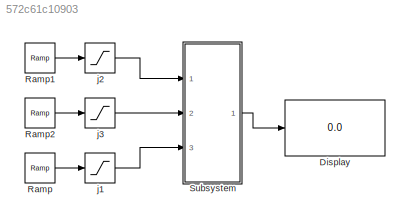
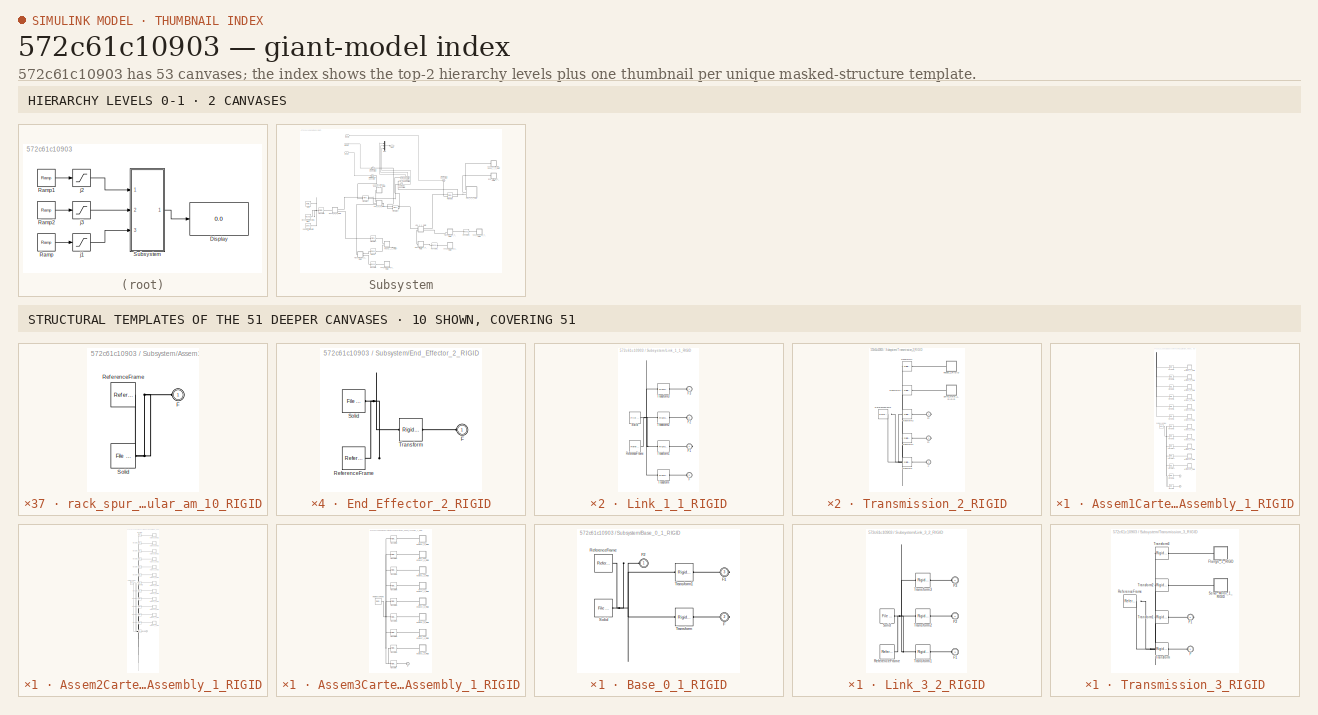
[diagram: thumbnail index - top-2 hierarchy levels (2 canvases) + 10 structural-template representatives of the remaining 51 canvases]
MODEL slx_572c61c10903
KIND model
CONFIG AbsTol = auto
CONFIG EnableMultiTasking = off
CONFIG FixedStep = auto
CONFIG MaxStep = auto
CONFIG MinStep = auto
CONFIG RelTol = 1e-3
CONFIG SampleTimeConstraint = Unconstrained
CONFIG Solver = VariableStepAuto
CONFIG SolverName = VariableStepAuto
CONFIG StartTime = 0.0
CONFIG StopTime = 10.0
WORKSPACE source: external: MATLAB File  (data not in archive)
BLOCK [Display] Display
  Decimation = 1
  Ports = [1]
BLOCK [Reference] Ramp  REF=simulink/Sources/Ramp
  Ports = [0, 1]
  SourceBlock = simulink/Sources/Ramp
  SourceProductBaseCode = SL
  SourceType = Ramp
BLOCK [Reference] Ramp1  REF=simulink/Sources/Ramp
  Ports = [0, 1]
  SourceBlock = simulink/Sources/Ramp
  SourceProductBaseCode = SL
  SourceType = Ramp
BLOCK [Reference] Ramp2  REF=simulink/Sources/Ramp
  Ports = [0, 1]
  SourceBlock = simulink/Sources/Ramp
  SourceProductBaseCode = SL
  SourceType = Ramp
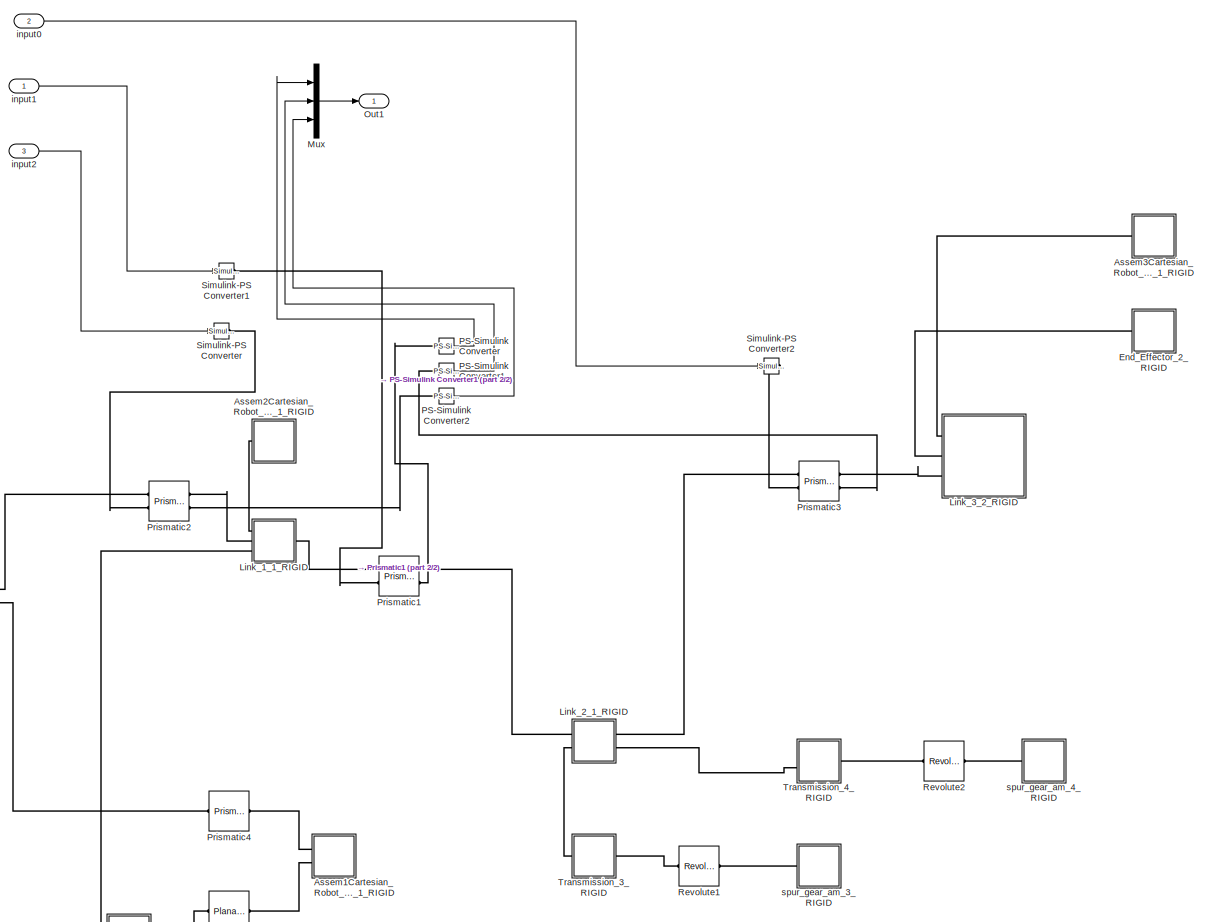
[diagram: Subsystem - part 1/2, most of the canvas]
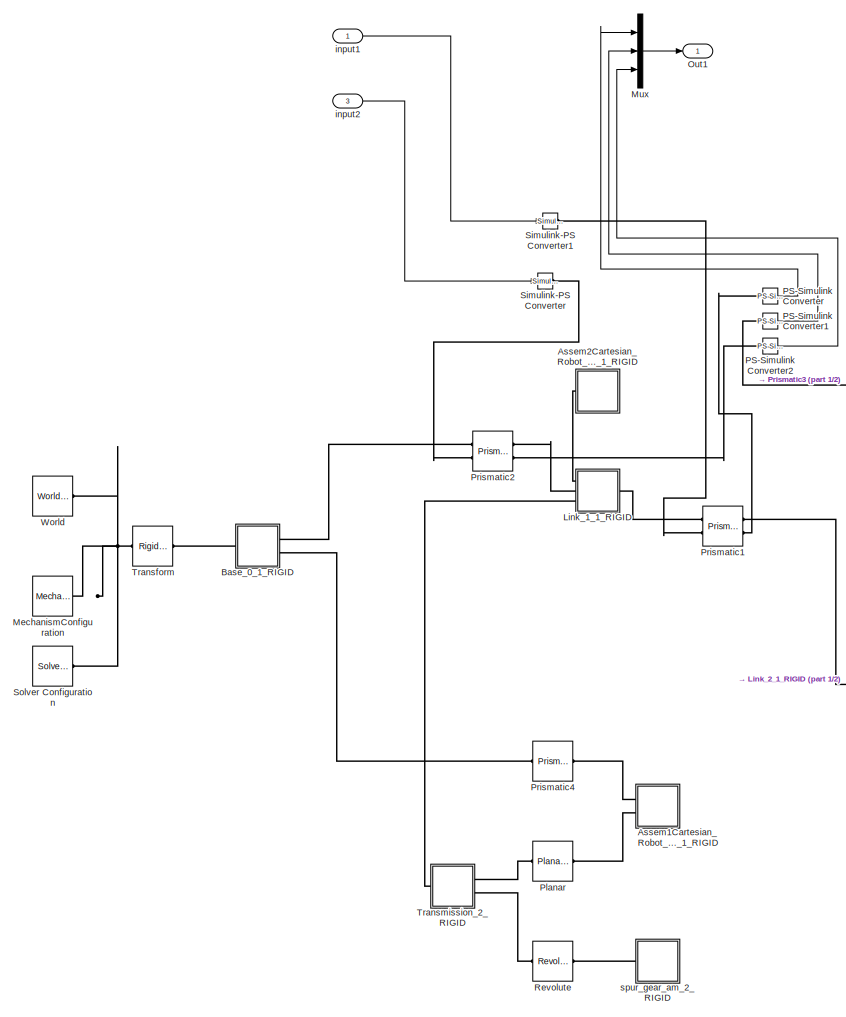
[diagram: Subsystem - part 2/2, left side, full height]
BLOCK [SubSystem] Subsystem
  Ports = [3, 1]
  RequestExecContextInheritance = off
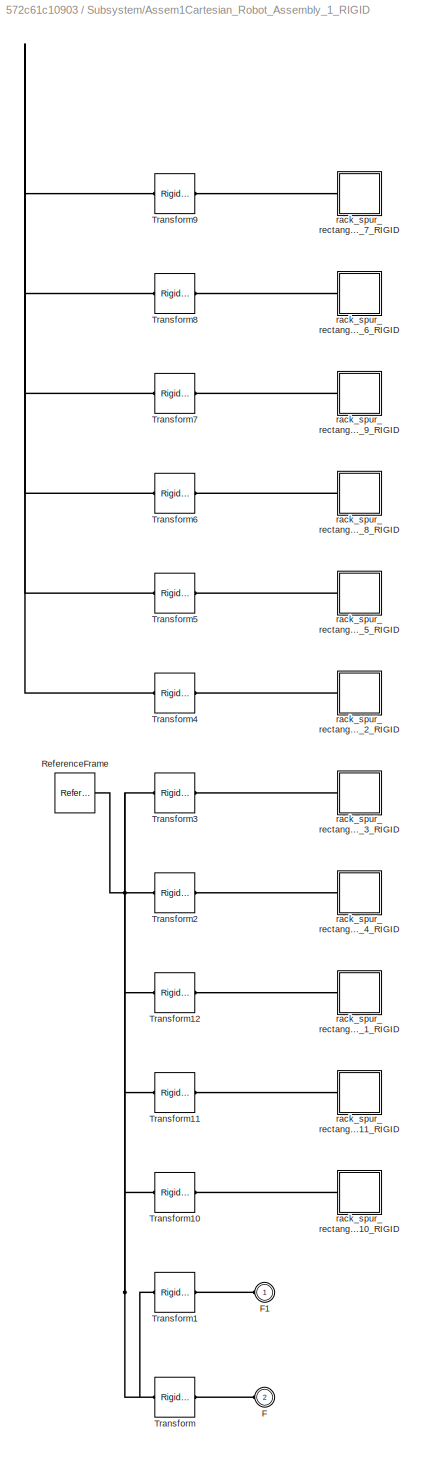
BLOCK [SubSystem] Subsystem/Assem1Cartesian_Robot_Assembly_1_RIGID
  Ports = [0, 0, 0, 0, 0, 2]
  RequestExecContextInheritance = off
BLOCK [PMIOPort] Subsystem/Assem1Cartesian_Robot_Assembly_1_RIGID/F
  Port = 2
  Side = Left
BLOCK [PMIOPort] Subsystem/Assem1Cartesian_Robot_Assembly_1_RIGID/F1
  Side = Left
BLOCK [Reference] Subsystem/Assem1Cartesian_Robot_Assembly_1_RIGID/ReferenceFrame  REF=sm_lib/Frames and
Transforms/Reference
Frame
  Ports = [0, 0, 0, 0, 0, 0, 1]
  SourceBlock = sm_lib/Frames and\nTransforms/Reference\nFrame
  SourceProductBaseCode = MS
  SourceType = Reference\nFrame
BLOCK [Reference] Subsystem/Assem1Cartesian_Robot_Assembly_1_RIGID/Transform  REF=sm_lib/Frames and
Transforms/Rigid
Transform
  Ports = [0, 0, 0, 0, 0, 1, 1]
  SourceBlock = sm_lib/Frames and\nTransforms/Rigid\nTransform
  SourceProductBaseCode = MS
  SourceType = Rigid\nTransform
BLOCK [Reference] Subsystem/Assem1Cartesian_Robot_Assembly_1_RIGID/Transform1  REF=sm_lib/Frames and
Transforms/Rigid
Transform
  Ports = [0, 0, 0, 0, 0, 1, 1]
  SourceBlock = sm_lib/Frames and\nTransforms/Rigid\nTransform
  SourceProductBaseCode = MS
  SourceType = Rigid\nTransform
BLOCK [Reference] Subsystem/Assem1Cartesian_Robot_Assembly_1_RIGID/Transform10  REF=sm_lib/Frames and
Transforms/Rigid
Transform
  Ports = [0, 0, 0, 0, 0, 1, 1]
  SourceBlock = sm_lib/Frames and\nTransforms/Rigid\nTransform
  SourceProductBaseCode = MS
  SourceType = Rigid\nTransform
BLOCK [Reference] Subsystem/Assem1Cartesian_Robot_Assembly_1_RIGID/Transform11  REF=sm_lib/Frames and
Transforms/Rigid
Transform
  Ports = [0, 0, 0, 0, 0, 1, 1]
  SourceBlock = sm_lib/Frames and\nTransforms/Rigid\nTransform
  SourceProductBaseCode = MS
  SourceType = Rigid\nTransform
BLOCK [Reference] Subsystem/Assem1Cartesian_Robot_Assembly_1_RIGID/Transform12  REF=sm_lib/Frames and
Transforms/Rigid
Transform
  Ports = [0, 0, 0, 0, 0, 1, 1]
  SourceBlock = sm_lib/Frames and\nTransforms/Rigid\nTransform
  SourceProductBaseCode = MS
  SourceType = Rigid\nTransform
BLOCK [Reference] Subsystem/Assem1Cartesian_Robot_Assembly_1_RIGID/Transform2  REF=sm_lib/Frames and
Transforms/Rigid
Transform
  Ports = [0, 0, 0, 0, 0, 1, 1]
  SourceBlock = sm_lib/Frames and\nTransforms/Rigid\nTransform
  SourceProductBaseCode = MS
  SourceType = Rigid\nTransform
BLOCK [Reference] Subsystem/Assem1Cartesian_Robot_Assembly_1_RIGID/Transform3  REF=sm_lib/Frames and
Transforms/Rigid
Transform
  Ports = [0, 0, 0, 0, 0, 1, 1]
  SourceBlock = sm_lib/Frames and\nTransforms/Rigid\nTransform
  SourceProductBaseCode = MS
  SourceType = Rigid\nTransform
BLOCK [Reference] Subsystem/Assem1Cartesian_Robot_Assembly_1_RIGID/Transform4  REF=sm_lib/Frames and
Transforms/Rigid
Transform
  Ports = [0, 0, 0, 0, 0, 1, 1]
  SourceBlock = sm_lib/Frames and\nTransforms/Rigid\nTransform
  SourceProductBaseCode = MS
  SourceType = Rigid\nTransform
BLOCK [Reference] Subsystem/Assem1Cartesian_Robot_Assembly_1_RIGID/Transform5  REF=sm_lib/Frames and
Transforms/Rigid
Transform
  Ports = [0, 0, 0, 0, 0, 1, 1]
  SourceBlock = sm_lib/Frames and\nTransforms/Rigid\nTransform
  SourceProductBaseCode = MS
  SourceType = Rigid\nTransform
BLOCK [Reference] Subsystem/Assem1Cartesian_Robot_Assembly_1_RIGID/Transform6  REF=sm_lib/Frames and
Transforms/Rigid
Transform
  Ports = [0, 0, 0, 0, 0, 1, 1]
  SourceBlock = sm_lib/Frames and\nTransforms/Rigid\nTransform
  SourceProductBaseCode = MS
  SourceType = Rigid\nTransform
BLOCK [Reference] Subsystem/Assem1Cartesian_Robot_Assembly_1_RIGID/Transform7  REF=sm_lib/Frames and
Transforms/Rigid
Transform
  Ports = [0, 0, 0, 0, 0, 1, 1]
  SourceBlock = sm_lib/Frames and\nTransforms/Rigid\nTransform
  SourceProductBaseCode = MS
  SourceType = Rigid\nTransform
BLOCK [Reference] Subsystem/Assem1Cartesian_Robot_Assembly_1_RIGID/Transform8  REF=sm_lib/Frames and
Transforms/Rigid
Transform
  Ports = [0, 0, 0, 0, 0, 1, 1]
  SourceBlock = sm_lib/Frames and\nTransforms/Rigid\nTransform
  SourceProductBaseCode = MS
  SourceType = Rigid\nTransform
BLOCK [Reference] Subsystem/Assem1Cartesian_Robot_Assembly_1_RIGID/Transform9  REF=sm_lib/Frames and
Transforms/Rigid
Transform
  Ports = [0, 0, 0, 0, 0, 1, 1]
  SourceBlock = sm_lib/Frames and\nTransforms/Rigid\nTransform
  SourceProductBaseCode = MS
  SourceType = Rigid\nTransform
BLOCK [SubSystem] Subsystem/Assem1Cartesian_Robot_Assembly_1_RIGID/rack_spur_rectangular_am_10_RIGID
  Ports = [0, 0, 0, 0, 0, 1]
  RequestExecContextInheritance = off
BLOCK [PMIOPort] Subsystem/Assem1Cartesian_Robot_Assembly_1_RIGID/rack_spur_rectangular_am_10_RIGID/F
  Side = Left
BLOCK [Reference] Subsystem/Assem1Cartesian_Robot_Assembly_1_RIGID/rack_spur_rectangular_am_10_RIGID/ReferenceFrame  REF=sm_lib/Frames and
Transforms/Reference
Frame
  Ports = [0, 0, 0, 0, 0, 0, 1]
  SourceBlock = sm_lib/Frames and\nTransforms/Reference\nFrame
  SourceProductBaseCode = MS
  SourceType = Reference\nFrame
BLOCK [Reference] Subsystem/Assem1Cartesian_Robot_Assembly_1_RIGID/rack_spur_rectangular_am_10_RIGID/Solid  REF=sm_lib/Body Elements/File Solid
  Ports = [0, 0, 0, 0, 0, 0, 1]
  SourceBlock = sm_lib/Body Elements/File Solid
  SourceProductBaseCode = MS
  SourceType = File Solid
BLOCK [SubSystem] Subsystem/Assem1Cartesian_Robot_Assembly_1_RIGID/rack_spur_rectangular_am_11_RIGID
  Ports = [0, 0, 0, 0, 0, 1]
  RequestExecContextInheritance = off
BLOCK [PMIOPort] Subsystem/Assem1Cartesian_Robot_Assembly_1_RIGID/rack_spur_rectangular_am_11_RIGID/F
  Side = Left
BLOCK [Reference] Subsystem/Assem1Cartesian_Robot_Assembly_1_RIGID/rack_spur_rectangular_am_11_RIGID/ReferenceFrame  REF=sm_lib/Frames and
Transforms/Reference
Frame
  Ports = [0, 0, 0, 0, 0, 0, 1]
  SourceBlock = sm_lib/Frames and\nTransforms/Reference\nFrame
  SourceProductBaseCode = MS
  SourceType = Reference\nFrame
BLOCK [Reference] Subsystem/Assem1Cartesian_Robot_Assembly_1_RIGID/rack_spur_rectangular_am_11_RIGID/Solid  REF=sm_lib/Body Elements/File Solid
  Ports = [0, 0, 0, 0, 0, 0, 1]
  SourceBlock = sm_lib/Body Elements/File Solid
  SourceProductBaseCode = MS
  SourceType = File Solid
BLOCK [SubSystem] Subsystem/Assem1Cartesian_Robot_Assembly_1_RIGID/rack_spur_rectangular_am_1_RIGID
  Ports = [0, 0, 0, 0, 0, 1]
  RequestExecContextInheritance = off
BLOCK [PMIOPort] Subsystem/Assem1Cartesian_Robot_Assembly_1_RIGID/rack_spur_rectangular_am_1_RIGID/F
  Side = Left
BLOCK [Reference] Subsystem/Assem1Cartesian_Robot_Assembly_1_RIGID/rack_spur_rectangular_am_1_RIGID/ReferenceFrame  REF=sm_lib/Frames and
Transforms/Reference
Frame
  Ports = [0, 0, 0, 0, 0, 0, 1]
  SourceBlock = sm_lib/Frames and\nTransforms/Reference\nFrame
  SourceProductBaseCode = MS
  SourceType = Reference\nFrame
BLOCK [Reference] Subsystem/Assem1Cartesian_Robot_Assembly_1_RIGID/rack_spur_rectangular_am_1_RIGID/Solid  REF=sm_lib/Body Elements/File Solid
  Ports = [0, 0, 0, 0, 0, 0, 1]
  SourceBlock = sm_lib/Body Elements/File Solid
  SourceProductBaseCode = MS
  SourceType = File Solid
BLOCK [SubSystem] Subsystem/Assem1Cartesian_Robot_Assembly_1_RIGID/rack_spur_rectangular_am_2_RIGID
  Ports = [0, 0, 0, 0, 0, 1]
  RequestExecContextInheritance = off
BLOCK [PMIOPort] Subsystem/Assem1Cartesian_Robot_Assembly_1_RIGID/rack_spur_rectangular_am_2_RIGID/F
  Side = Left
BLOCK [Reference] Subsystem/Assem1Cartesian_Robot_Assembly_1_RIGID/rack_spur_rectangular_am_2_RIGID/ReferenceFrame  REF=sm_lib/Frames and
Transforms/Reference
Frame
  Ports = [0, 0, 0, 0, 0, 0, 1]
  SourceBlock = sm_lib/Frames and\nTransforms/Reference\nFrame
  SourceProductBaseCode = MS
  SourceType = Reference\nFrame
BLOCK [Reference] Subsystem/Assem1Cartesian_Robot_Assembly_1_RIGID/rack_spur_rectangular_am_2_RIGID/Solid  REF=sm_lib/Body Elements/File Solid
  Ports = [0, 0, 0, 0, 0, 0, 1]
  SourceBlock = sm_lib/Body Elements/File Solid
  SourceProductBaseCode = MS
  SourceType = File Solid
BLOCK [SubSystem] Subsystem/Assem1Cartesian_Robot_Assembly_1_RIGID/rack_spur_rectangular_am_3_RIGID
  Ports = [0, 0, 0, 0, 0, 1]
  RequestExecContextInheritance = off
BLOCK [PMIOPort] Subsystem/Assem1Cartesian_Robot_Assembly_1_RIGID/rack_spur_rectangular_am_3_RIGID/F
  Side = Left
BLOCK [Reference] Subsystem/Assem1Cartesian_Robot_Assembly_1_RIGID/rack_spur_rectangular_am_3_RIGID/ReferenceFrame  REF=sm_lib/Frames and
Transforms/Reference
Frame
  Ports = [0, 0, 0, 0, 0, 0, 1]
  SourceBlock = sm_lib/Frames and\nTransforms/Reference\nFrame
  SourceProductBaseCode = MS
  SourceType = Reference\nFrame
BLOCK [Reference] Subsystem/Assem1Cartesian_Robot_Assembly_1_RIGID/rack_spur_rectangular_am_3_RIGID/Solid  REF=sm_lib/Body Elements/File Solid
  Ports = [0, 0, 0, 0, 0, 0, 1]
  SourceBlock = sm_lib/Body Elements/File Solid
  SourceProductBaseCode = MS
  SourceType = File Solid
BLOCK [SubSystem] Subsystem/Assem1Cartesian_Robot_Assembly_1_RIGID/rack_spur_rectangular_am_4_RIGID
  Ports = [0, 0, 0, 0, 0, 1]
  RequestExecContextInheritance = off
BLOCK [PMIOPort] Subsystem/Assem1Cartesian_Robot_Assembly_1_RIGID/rack_spur_rectangular_am_4_RIGID/F
  Side = Left
BLOCK [Reference] Subsystem/Assem1Cartesian_Robot_Assembly_1_RIGID/rack_spur_rectangular_am_4_RIGID/ReferenceFrame  REF=sm_lib/Frames and
Transforms/Reference
Frame
  Ports = [0, 0, 0, 0, 0, 0, 1]
  SourceBlock = sm_lib/Frames and\nTransforms/Reference\nFrame
  SourceProductBaseCode = MS
  SourceType = Reference\nFrame
BLOCK [Reference] Subsystem/Assem1Cartesian_Robot_Assembly_1_RIGID/rack_spur_rectangular_am_4_RIGID/Solid  REF=sm_lib/Body Elements/File Solid
  Ports = [0, 0, 0, 0, 0, 0, 1]
  SourceBlock = sm_lib/Body Elements/File Solid
  SourceProductBaseCode = MS
  SourceType = File Solid
BLOCK [SubSystem] Subsystem/Assem1Cartesian_Robot_Assembly_1_RIGID/rack_spur_rectangular_am_5_RIGID
  Ports = [0, 0, 0, 0, 0, 1]
  RequestExecContextInheritance = off
BLOCK [PMIOPort] Subsystem/Assem1Cartesian_Robot_Assembly_1_RIGID/rack_spur_rectangular_am_5_RIGID/F
  Side = Left
BLOCK [Reference] Subsystem/Assem1Cartesian_Robot_Assembly_1_RIGID/rack_spur_rectangular_am_5_RIGID/ReferenceFrame  REF=sm_lib/Frames and
Transforms/Reference
Frame
  Ports = [0, 0, 0, 0, 0, 0, 1]
  SourceBlock = sm_lib/Frames and\nTransforms/Reference\nFrame
  SourceProductBaseCode = MS
  SourceType = Reference\nFrame
BLOCK [Reference] Subsystem/Assem1Cartesian_Robot_Assembly_1_RIGID/rack_spur_rectangular_am_5_RIGID/Solid  REF=sm_lib/Body Elements/File Solid
  Ports = [0, 0, 0, 0, 0, 0, 1]
  SourceBlock = sm_lib/Body Elements/File Solid
  SourceProductBaseCode = MS
  SourceType = File Solid
BLOCK [SubSystem] Subsystem/Assem1Cartesian_Robot_Assembly_1_RIGID/rack_spur_rectangular_am_6_RIGID
  Ports = [0, 0, 0, 0, 0, 1]
  RequestExecContextInheritance = off
BLOCK [PMIOPort] Subsystem/Assem1Cartesian_Robot_Assembly_1_RIGID/rack_spur_rectangular_am_6_RIGID/F
  Side = Left
BLOCK [Reference] Subsystem/Assem1Cartesian_Robot_Assembly_1_RIGID/rack_spur_rectangular_am_6_RIGID/ReferenceFrame  REF=sm_lib/Frames and
Transforms/Reference
Frame
  Ports = [0, 0, 0, 0, 0, 0, 1]
  SourceBlock = sm_lib/Frames and\nTransforms/Reference\nFrame
  SourceProductBaseCode = MS
  SourceType = Reference\nFrame
BLOCK [Reference] Subsystem/Assem1Cartesian_Robot_Assembly_1_RIGID/rack_spur_rectangular_am_6_RIGID/Solid  REF=sm_lib/Body Elements/File Solid
  Ports = [0, 0, 0, 0, 0, 0, 1]
  SourceBlock = sm_lib/Body Elements/File Solid
  SourceProductBaseCode = MS
  SourceType = File Solid
BLOCK [SubSystem] Subsystem/Assem1Cartesian_Robot_Assembly_1_RIGID/rack_spur_rectangular_am_7_RIGID
  Ports = [0, 0, 0, 0, 0, 1]
  RequestExecContextInheritance = off
BLOCK [PMIOPort] Subsystem/Assem1Cartesian_Robot_Assembly_1_RIGID/rack_spur_rectangular_am_7_RIGID/F
  Side = Left
BLOCK [Reference] Subsystem/Assem1Cartesian_Robot_Assembly_1_RIGID/rack_spur_rectangular_am_7_RIGID/ReferenceFrame  REF=sm_lib/Frames and
Transforms/Reference
Frame
  Ports = [0, 0, 0, 0, 0, 0, 1]
  SourceBlock = sm_lib/Frames and\nTransforms/Reference\nFrame
  SourceProductBaseCode = MS
  SourceType = Reference\nFrame
BLOCK [Reference] Subsystem/Assem1Cartesian_Robot_Assembly_1_RIGID/rack_spur_rectangular_am_7_RIGID/Solid  REF=sm_lib/Body Elements/File Solid
  Ports = [0, 0, 0, 0, 0, 0, 1]
  SourceBlock = sm_lib/Body Elements/File Solid
  SourceProductBaseCode = MS
  SourceType = File Solid
BLOCK [SubSystem] Subsystem/Assem1Cartesian_Robot_Assembly_1_RIGID/rack_spur_rectangular_am_8_RIGID
  Ports = [0, 0, 0, 0, 0, 1]
  RequestExecContextInheritance = off
BLOCK [PMIOPort] Subsystem/Assem1Cartesian_Robot_Assembly_1_RIGID/rack_spur_rectangular_am_8_RIGID/F
  Side = Left
BLOCK [Reference] Subsystem/Assem1Cartesian_Robot_Assembly_1_RIGID/rack_spur_rectangular_am_8_RIGID/ReferenceFrame  REF=sm_lib/Frames and
Transforms/Reference
Frame
  Ports = [0, 0, 0, 0, 0, 0, 1]
  SourceBlock = sm_lib/Frames and\nTransforms/Reference\nFrame
  SourceProductBaseCode = MS
  SourceType = Reference\nFrame
BLOCK [Reference] Subsystem/Assem1Cartesian_Robot_Assembly_1_RIGID/rack_spur_rectangular_am_8_RIGID/Solid  REF=sm_lib/Body Elements/File Solid
  Ports = [0, 0, 0, 0, 0, 0, 1]
  SourceBlock = sm_lib/Body Elements/File Solid
  SourceProductBaseCode = MS
  SourceType = File Solid
BLOCK [SubSystem] Subsystem/Assem1Cartesian_Robot_Assembly_1_RIGID/rack_spur_rectangular_am_9_RIGID
  Ports = [0, 0, 0, 0, 0, 1]
  RequestExecContextInheritance = off
BLOCK [PMIOPort] Subsystem/Assem1Cartesian_Robot_Assembly_1_RIGID/rack_spur_rectangular_am_9_RIGID/F
  Side = Left
BLOCK [Reference] Subsystem/Assem1Cartesian_Robot_Assembly_1_RIGID/rack_spur_rectangular_am_9_RIGID/ReferenceFrame  REF=sm_lib/Frames and
Transforms/Reference
Frame
  Ports = [0, 0, 0, 0, 0, 0, 1]
  SourceBlock = sm_lib/Frames and\nTransforms/Reference\nFrame
  SourceProductBaseCode = MS
  SourceType = Reference\nFrame
BLOCK [Reference] Subsystem/Assem1Cartesian_Robot_Assembly_1_RIGID/rack_spur_rectangular_am_9_RIGID/Solid  REF=sm_lib/Body Elements/File Solid
  Ports = [0, 0, 0, 0, 0, 0, 1]
  SourceBlock = sm_lib/Body Elements/File Solid
  SourceProductBaseCode = MS
  SourceType = File Solid
BLOCK [SubSystem] Subsystem/Assem2Cartesian_Robot_Assembly_1_RIGID
  Ports = [0, 0, 0, 0, 0, 1]
  RequestExecContextInheritance = off
BLOCK [PMIOPort] Subsystem/Assem2Cartesian_Robot_Assembly_1_RIGID/F
  Side = Left
BLOCK [Reference] Subsystem/Assem2Cartesian_Robot_Assembly_1_RIGID/ReferenceFrame  REF=sm_lib/Frames and
Transforms/Reference
Frame
  Ports = [0, 0, 0, 0, 0, 0, 1]
  SourceBlock = sm_lib/Frames and\nTransforms/Reference\nFrame
  SourceProductBaseCode = MS
  SourceType = Reference\nFrame
BLOCK [Reference] Subsystem/Assem2Cartesian_Robot_Assembly_1_RIGID/Transform  REF=sm_lib/Frames and
Transforms/Rigid
Transform
  Ports = [0, 0, 0, 0, 0, 1, 1]
  SourceBlock = sm_lib/Frames and\nTransforms/Rigid\nTransform
  SourceProductBaseCode = MS
  SourceType = Rigid\nTransform
BLOCK [Reference] Subsystem/Assem2Cartesian_Robot_Assembly_1_RIGID/Transform1  REF=sm_lib/Frames and
Transforms/Rigid
Transform
  Ports = [0, 0, 0, 0, 0, 1, 1]
  SourceBlock = sm_lib/Frames and\nTransforms/Rigid\nTransform
  SourceProductBaseCode = MS
  SourceType = Rigid\nTransform
BLOCK [Reference] Subsystem/Assem2Cartesian_Robot_Assembly_1_RIGID/Transform10  REF=sm_lib/Frames and
Transforms/Rigid
Transform
  Ports = [0, 0, 0, 0, 0, 1, 1]
  SourceBlock = sm_lib/Frames and\nTransforms/Rigid\nTransform
  SourceProductBaseCode = MS
  SourceType = Rigid\nTransform
BLOCK [Reference] Subsystem/Assem2Cartesian_Robot_Assembly_1_RIGID/Transform11  REF=sm_lib/Frames and
Transforms/Rigid
Transform
  Ports = [0, 0, 0, 0, 0, 1, 1]
  SourceBlock = sm_lib/Frames and\nTransforms/Rigid\nTransform
  SourceProductBaseCode = MS
  SourceType = Rigid\nTransform
BLOCK [Reference] Subsystem/Assem2Cartesian_Robot_Assembly_1_RIGID/Transform12  REF=sm_lib/Frames and
Transforms/Rigid
Transform
  Ports = [0, 0, 0, 0, 0, 1, 1]
  SourceBlock = sm_lib/Frames and\nTransforms/Rigid\nTransform
  SourceProductBaseCode = MS
  SourceType = Rigid\nTransform
BLOCK [Reference] Subsystem/Assem2Cartesian_Robot_Assembly_1_RIGID/Transform2  REF=sm_lib/Frames and
Transforms/Rigid
Transform
  Ports = [0, 0, 0, 0, 0, 1, 1]
  SourceBlock = sm_lib/Frames and\nTransforms/Rigid\nTransform
  SourceProductBaseCode = MS
  SourceType = Rigid\nTransform
BLOCK [Reference] Subsystem/Assem2Cartesian_Robot_Assembly_1_RIGID/Transform3  REF=sm_lib/Frames and
Transforms/Rigid
Transform
  Ports = [0, 0, 0, 0, 0, 1, 1]
  SourceBlock = sm_lib/Frames and\nTransforms/Rigid\nTransform
  SourceProductBaseCode = MS
  SourceType = Rigid\nTransform
BLOCK [Reference] Subsystem/Assem2Cartesian_Robot_Assembly_1_RIGID/Transform4  REF=sm_lib/Frames and
Transforms/Rigid
Transform
  Ports = [0, 0, 0, 0, 0, 1, 1]
  SourceBlock = sm_lib/Frames and\nTransforms/Rigid\nTransform
  SourceProductBaseCode = MS
  SourceType = Rigid\nTransform
BLOCK [Reference] Subsystem/Assem2Cartesian_Robot_Assembly_1_RIGID/Transform5  REF=sm_lib/Frames and
Transforms/Rigid
Transform
  Ports = [0, 0, 0, 0, 0, 1, 1]
  SourceBlock = sm_lib/Frames and\nTransforms/Rigid\nTransform
  SourceProductBaseCode = MS
  SourceType = Rigid\nTransform
BLOCK [Reference] Subsystem/Assem2Cartesian_Robot_Assembly_1_RIGID/Transform6  REF=sm_lib/Frames and
Transforms/Rigid
Transform
  Ports = [0, 0, 0, 0, 0, 1, 1]
  SourceBlock = sm_lib/Frames and\nTransforms/Rigid\nTransform
  SourceProductBaseCode = MS
  SourceType = Rigid\nTransform
BLOCK [Reference] Subsystem/Assem2Cartesian_Robot_Assembly_1_RIGID/Transform7  REF=sm_lib/Frames and
Transforms/Rigid
Transform
  Ports = [0, 0, 0, 0, 0, 1, 1]
  SourceBlock = sm_lib/Frames and\nTransforms/Rigid\nTransform
  SourceProductBaseCode = MS
  SourceType = Rigid\nTransform
BLOCK [Reference] Subsystem/Assem2Cartesian_Robot_Assembly_1_RIGID/Transform8  REF=sm_lib/Frames and
Transforms/Rigid
Transform
  Ports = [0, 0, 0, 0, 0, 1, 1]
  SourceBlock = sm_lib/Frames and\nTransforms/Rigid\nTransform
  SourceProductBaseCode = MS
  SourceType = Rigid\nTransform
BLOCK [Reference] Subsystem/Assem2Cartesian_Robot_Assembly_1_RIGID/Transform9  REF=sm_lib/Frames and
Transforms/Rigid
Transform
  Ports = [0, 0, 0, 0, 0, 1, 1]
  SourceBlock = sm_lib/Frames and\nTransforms/Rigid\nTransform
  SourceProductBaseCode = MS
  SourceType = Rigid\nTransform
BLOCK [SubSystem] Subsystem/Assem2Cartesian_Robot_Assembly_1_RIGID/rack_spur_rectangular_am_10_RIGID
  Ports = [0, 0, 0, 0, 0, 1]
  RequestExecContextInheritance = off
BLOCK [PMIOPort] Subsystem/Assem2Cartesian_Robot_Assembly_1_RIGID/rack_spur_rectangular_am_10_RIGID/F
  Side = Left
BLOCK [Reference] Subsystem/Assem2Cartesian_Robot_Assembly_1_RIGID/rack_spur_rectangular_am_10_RIGID/ReferenceFrame  REF=sm_lib/Frames and
Transforms/Reference
Frame
  Ports = [0, 0, 0, 0, 0, 0, 1]
  SourceBlock = sm_lib/Frames and\nTransforms/Reference\nFrame
  SourceProductBaseCode = MS
  SourceType = Reference\nFrame
BLOCK [Reference] Subsystem/Assem2Cartesian_Robot_Assembly_1_RIGID/rack_spur_rectangular_am_10_RIGID/Solid  REF=sm_lib/Body Elements/File Solid
  Ports = [0, 0, 0, 0, 0, 0, 1]
  SourceBlock = sm_lib/Body Elements/File Solid
  SourceProductBaseCode = MS
  SourceType = File Solid
BLOCK [SubSystem] Subsystem/Assem2Cartesian_Robot_Assembly_1_RIGID/rack_spur_rectangular_am_11_RIGID
  Ports = [0, 0, 0, 0, 0, 1]
  RequestExecContextInheritance = off
BLOCK [PMIOPort] Subsystem/Assem2Cartesian_Robot_Assembly_1_RIGID/rack_spur_rectangular_am_11_RIGID/F
  Side = Left
BLOCK [Reference] Subsystem/Assem2Cartesian_Robot_Assembly_1_RIGID/rack_spur_rectangular_am_11_RIGID/ReferenceFrame  REF=sm_lib/Frames and
Transforms/Reference
Frame
  Ports = [0, 0, 0, 0, 0, 0, 1]
  SourceBlock = sm_lib/Frames and\nTransforms/Reference\nFrame
  SourceProductBaseCode = MS
  SourceType = Reference\nFrame
BLOCK [Reference] Subsystem/Assem2Cartesian_Robot_Assembly_1_RIGID/rack_spur_rectangular_am_11_RIGID/Solid  REF=sm_lib/Body Elements/File Solid
  Ports = [0, 0, 0, 0, 0, 0, 1]
  SourceBlock = sm_lib/Body Elements/File Solid
  SourceProductBaseCode = MS
  SourceType = File Solid
BLOCK [SubSystem] Subsystem/Assem2Cartesian_Robot_Assembly_1_RIGID/rack_spur_rectangular_am_12_RIGID
  Ports = [0, 0, 0, 0, 0, 1]
  RequestExecContextInheritance = off
BLOCK [PMIOPort] Subsystem/Assem2Cartesian_Robot_Assembly_1_RIGID/rack_spur_rectangular_am_12_RIGID/F
  Side = Left
BLOCK [Reference] Subsystem/Assem2Cartesian_Robot_Assembly_1_RIGID/rack_spur_rectangular_am_12_RIGID/ReferenceFrame  REF=sm_lib/Frames and
Transforms/Reference
Frame
  Ports = [0, 0, 0, 0, 0, 0, 1]
  SourceBlock = sm_lib/Frames and\nTransforms/Reference\nFrame
  SourceProductBaseCode = MS
  SourceType = Reference\nFrame
BLOCK [Reference] Subsystem/Assem2Cartesian_Robot_Assembly_1_RIGID/rack_spur_rectangular_am_12_RIGID/Solid  REF=sm_lib/Body Elements/File Solid
  Ports = [0, 0, 0, 0, 0, 0, 1]
  SourceBlock = sm_lib/Body Elements/File Solid
  SourceProductBaseCode = MS
  SourceType = File Solid
BLOCK [SubSystem] Subsystem/Assem2Cartesian_Robot_Assembly_1_RIGID/rack_spur_rectangular_am_1_RIGID
  Ports = [0, 0, 0, 0, 0, 1]
  RequestExecContextInheritance = off
BLOCK [PMIOPort] Subsystem/Assem2Cartesian_Robot_Assembly_1_RIGID/rack_spur_rectangular_am_1_RIGID/F
  Side = Left
BLOCK [Reference] Subsystem/Assem2Cartesian_Robot_Assembly_1_RIGID/rack_spur_rectangular_am_1_RIGID/ReferenceFrame  REF=sm_lib/Frames and
Transforms/Reference
Frame
  Ports = [0, 0, 0, 0, 0, 0, 1]
  SourceBlock = sm_lib/Frames and\nTransforms/Reference\nFrame
  SourceProductBaseCode = MS
  SourceType = Reference\nFrame
BLOCK [Reference] Subsystem/Assem2Cartesian_Robot_Assembly_1_RIGID/rack_spur_rectangular_am_1_RIGID/Solid  REF=sm_lib/Body Elements/File Solid
  Ports = [0, 0, 0, 0, 0, 0, 1]
  SourceBlock = sm_lib/Body Elements/File Solid
  SourceProductBaseCode = MS
  SourceType = File Solid
BLOCK [SubSystem] Subsystem/Assem2Cartesian_Robot_Assembly_1_RIGID/rack_spur_rectangular_am_2_RIGID
  Ports = [0, 0, 0, 0, 0, 1]
  RequestExecContextInheritance = off
BLOCK [PMIOPort] Subsystem/Assem2Cartesian_Robot_Assembly_1_RIGID/rack_spur_rectangular_am_2_RIGID/F
  Side = Left
BLOCK [Reference] Subsystem/Assem2Cartesian_Robot_Assembly_1_RIGID/rack_spur_rectangular_am_2_RIGID/ReferenceFrame  REF=sm_lib/Frames and
Transforms/Reference
Frame
  Ports = [0, 0, 0, 0, 0, 0, 1]
  SourceBlock = sm_lib/Frames and\nTransforms/Reference\nFrame
  SourceProductBaseCode = MS
  SourceType = Reference\nFrame
BLOCK [Reference] Subsystem/Assem2Cartesian_Robot_Assembly_1_RIGID/rack_spur_rectangular_am_2_RIGID/Solid  REF=sm_lib/Body Elements/File Solid
  Ports = [0, 0, 0, 0, 0, 0, 1]
  SourceBlock = sm_lib/Body Elements/File Solid
  SourceProductBaseCode = MS
  SourceType = File Solid
BLOCK [SubSystem] Subsystem/Assem2Cartesian_Robot_Assembly_1_RIGID/rack_spur_rectangular_am_3_RIGID
  Ports = [0, 0, 0, 0, 0, 1]
  RequestExecContextInheritance = off
BLOCK [PMIOPort] Subsystem/Assem2Cartesian_Robot_Assembly_1_RIGID/rack_spur_rectangular_am_3_RIGID/F
  Side = Left
BLOCK [Reference] Subsystem/Assem2Cartesian_Robot_Assembly_1_RIGID/rack_spur_rectangular_am_3_RIGID/ReferenceFrame  REF=sm_lib/Frames and
Transforms/Reference
Frame
  Ports = [0, 0, 0, 0, 0, 0, 1]
  SourceBlock = sm_lib/Frames and\nTransforms/Reference\nFrame
  SourceProductBaseCode = MS
  SourceType = Reference\nFrame
BLOCK [Reference] Subsystem/Assem2Cartesian_Robot_Assembly_1_RIGID/rack_spur_rectangular_am_3_RIGID/Solid  REF=sm_lib/Body Elements/File Solid
  Ports = [0, 0, 0, 0, 0, 0, 1]
  SourceBlock = sm_lib/Body Elements/File Solid
  SourceProductBaseCode = MS
  SourceType = File Solid
BLOCK [SubSystem] Subsystem/Assem2Cartesian_Robot_Assembly_1_RIGID/rack_spur_rectangular_am_4_RIGID
  Ports = [0, 0, 0, 0, 0, 1]
  RequestExecContextInheritance = off
BLOCK [PMIOPort] Subsystem/Assem2Cartesian_Robot_Assembly_1_RIGID/rack_spur_rectangular_am_4_RIGID/F
  Side = Left
BLOCK [Reference] Subsystem/Assem2Cartesian_Robot_Assembly_1_RIGID/rack_spur_rectangular_am_4_RIGID/ReferenceFrame  REF=sm_lib/Frames and
Transforms/Reference
Frame
  Ports = [0, 0, 0, 0, 0, 0, 1]
  SourceBlock = sm_lib/Frames and\nTransforms/Reference\nFrame
  SourceProductBaseCode = MS
  SourceType = Reference\nFrame
BLOCK [Reference] Subsystem/Assem2Cartesian_Robot_Assembly_1_RIGID/rack_spur_rectangular_am_4_RIGID/Solid  REF=sm_lib/Body Elements/File Solid
  Ports = [0, 0, 0, 0, 0, 0, 1]
  SourceBlock = sm_lib/Body Elements/File Solid
  SourceProductBaseCode = MS
  SourceType = File Solid
BLOCK [SubSystem] Subsystem/Assem2Cartesian_Robot_Assembly_1_RIGID/rack_spur_rectangular_am_5_RIGID
  Ports = [0, 0, 0, 0, 0, 1]
  RequestExecContextInheritance = off
BLOCK [PMIOPort] Subsystem/Assem2Cartesian_Robot_Assembly_1_RIGID/rack_spur_rectangular_am_5_RIGID/F
  Side = Left
BLOCK [Reference] Subsystem/Assem2Cartesian_Robot_Assembly_1_RIGID/rack_spur_rectangular_am_5_RIGID/ReferenceFrame  REF=sm_lib/Frames and
Transforms/Reference
Frame
  Ports = [0, 0, 0, 0, 0, 0, 1]
  SourceBlock = sm_lib/Frames and\nTransforms/Reference\nFrame
  SourceProductBaseCode = MS
  SourceType = Reference\nFrame
BLOCK [Reference] Subsystem/Assem2Cartesian_Robot_Assembly_1_RIGID/rack_spur_rectangular_am_5_RIGID/Solid  REF=sm_lib/Body Elements/File Solid
  Ports = [0, 0, 0, 0, 0, 0, 1]
  SourceBlock = sm_lib/Body Elements/File Solid
  SourceProductBaseCode = MS
  SourceType = File Solid
BLOCK [SubSystem] Subsystem/Assem2Cartesian_Robot_Assembly_1_RIGID/rack_spur_rectangular_am_6_RIGID
  Ports = [0, 0, 0, 0, 0, 1]
  RequestExecContextInheritance = off
BLOCK [PMIOPort] Subsystem/Assem2Cartesian_Robot_Assembly_1_RIGID/rack_spur_rectangular_am_6_RIGID/F
  Side = Left
BLOCK [Reference] Subsystem/Assem2Cartesian_Robot_Assembly_1_RIGID/rack_spur_rectangular_am_6_RIGID/ReferenceFrame  REF=sm_lib/Frames and
Transforms/Reference
Frame
  Ports = [0, 0, 0, 0, 0, 0, 1]
  SourceBlock = sm_lib/Frames and\nTransforms/Reference\nFrame
  SourceProductBaseCode = MS
  SourceType = Reference\nFrame
BLOCK [Reference] Subsystem/Assem2Cartesian_Robot_Assembly_1_RIGID/rack_spur_rectangular_am_6_RIGID/Solid  REF=sm_lib/Body Elements/File Solid
  Ports = [0, 0, 0, 0, 0, 0, 1]
  SourceBlock = sm_lib/Body Elements/File Solid
  SourceProductBaseCode = MS
  SourceType = File Solid
BLOCK [SubSystem] Subsystem/Assem2Cartesian_Robot_Assembly_1_RIGID/rack_spur_rectangular_am_7_RIGID
  Ports = [0, 0, 0, 0, 0, 1]
  RequestExecContextInheritance = off
BLOCK [PMIOPort] Subsystem/Assem2Cartesian_Robot_Assembly_1_RIGID/rack_spur_rectangular_am_7_RIGID/F
  Side = Left
BLOCK [Reference] Subsystem/Assem2Cartesian_Robot_Assembly_1_RIGID/rack_spur_rectangular_am_7_RIGID/ReferenceFrame  REF=sm_lib/Frames and
Transforms/Reference
Frame
  Ports = [0, 0, 0, 0, 0, 0, 1]
  SourceBlock = sm_lib/Frames and\nTransforms/Reference\nFrame
  SourceProductBaseCode = MS
  SourceType = Reference\nFrame
BLOCK [Reference] Subsystem/Assem2Cartesian_Robot_Assembly_1_RIGID/rack_spur_rectangular_am_7_RIGID/Solid  REF=sm_lib/Body Elements/File Solid
  Ports = [0, 0, 0, 0, 0, 0, 1]
  SourceBlock = sm_lib/Body Elements/File Solid
  SourceProductBaseCode = MS
  SourceType = File Solid
BLOCK [SubSystem] Subsystem/Assem2Cartesian_Robot_Assembly_1_RIGID/rack_spur_rectangular_am_8_RIGID
  Ports = [0, 0, 0, 0, 0, 1]
  RequestExecContextInheritance = off
BLOCK [PMIOPort] Subsystem/Assem2Cartesian_Robot_Assembly_1_RIGID/rack_spur_rectangular_am_8_RIGID/F
  Side = Left
BLOCK [Reference] Subsystem/Assem2Cartesian_Robot_Assembly_1_RIGID/rack_spur_rectangular_am_8_RIGID/ReferenceFrame  REF=sm_lib/Frames and
Transforms/Reference
Frame
  Ports = [0, 0, 0, 0, 0, 0, 1]
  SourceBlock = sm_lib/Frames and\nTransforms/Reference\nFrame
  SourceProductBaseCode = MS
  SourceType = Reference\nFrame
BLOCK [Reference] Subsystem/Assem2Cartesian_Robot_Assembly_1_RIGID/rack_spur_rectangular_am_8_RIGID/Solid  REF=sm_lib/Body Elements/File Solid
  Ports = [0, 0, 0, 0, 0, 0, 1]
  SourceBlock = sm_lib/Body Elements/File Solid
  SourceProductBaseCode = MS
  SourceType = File Solid
BLOCK [SubSystem] Subsystem/Assem2Cartesian_Robot_Assembly_1_RIGID/rack_spur_rectangular_am_9_RIGID
  Ports = [0, 0, 0, 0, 0, 1]
  RequestExecContextInheritance = off
BLOCK [PMIOPort] Subsystem/Assem2Cartesian_Robot_Assembly_1_RIGID/rack_spur_rectangular_am_9_RIGID/F
  Side = Left
BLOCK [Reference] Subsystem/Assem2Cartesian_Robot_Assembly_1_RIGID/rack_spur_rectangular_am_9_RIGID/ReferenceFrame  REF=sm_lib/Frames and
Transforms/Reference
Frame
  Ports = [0, 0, 0, 0, 0, 0, 1]
  SourceBlock = sm_lib/Frames and\nTransforms/Reference\nFrame
  SourceProductBaseCode = MS
  SourceType = Reference\nFrame
BLOCK [Reference] Subsystem/Assem2Cartesian_Robot_Assembly_1_RIGID/rack_spur_rectangular_am_9_RIGID/Solid  REF=sm_lib/Body Elements/File Solid
  Ports = [0, 0, 0, 0, 0, 0, 1]
  SourceBlock = sm_lib/Body Elements/File Solid
  SourceProductBaseCode = MS
  SourceType = File Solid
BLOCK [SubSystem] Subsystem/Assem3Cartesian_Robot_Assembly_1_RIGID
  Ports = [0, 0, 0, 0, 0, 1]
  RequestExecContextInheritance = off
BLOCK [PMIOPort] Subsystem/Assem3Cartesian_Robot_Assembly_1_RIGID/F
  Side = Left
BLOCK [Reference] Subsystem/Assem3Cartesian_Robot_Assembly_1_RIGID/ReferenceFrame  REF=sm_lib/Frames and
Transforms/Reference
Frame
  Ports = [0, 0, 0, 0, 0, 0, 1]
  SourceBlock = sm_lib/Frames and\nTransforms/Reference\nFrame
  SourceProductBaseCode = MS
  SourceType = Reference\nFrame
BLOCK [Reference] Subsystem/Assem3Cartesian_Robot_Assembly_1_RIGID/Transform  REF=sm_lib/Frames and
Transforms/Rigid
Transform
  Ports = [0, 0, 0, 0, 0, 1, 1]
  SourceBlock = sm_lib/Frames and\nTransforms/Rigid\nTransform
  SourceProductBaseCode = MS
  SourceType = Rigid\nTransform
BLOCK [Reference] Subsystem/Assem3Cartesian_Robot_Assembly_1_RIGID/Transform1  REF=sm_lib/Frames and
Transforms/Rigid
Transform
  Ports = [0, 0, 0, 0, 0, 1, 1]
  SourceBlock = sm_lib/Frames and\nTransforms/Rigid\nTransform
  SourceProductBaseCode = MS
  SourceType = Rigid\nTransform
BLOCK [Reference] Subsystem/Assem3Cartesian_Robot_Assembly_1_RIGID/Transform2  REF=sm_lib/Frames and
Transforms/Rigid
Transform
  Ports = [0, 0, 0, 0, 0, 1, 1]
  SourceBlock = sm_lib/Frames and\nTransforms/Rigid\nTransform
  SourceProductBaseCode = MS
  SourceType = Rigid\nTransform
BLOCK [Reference] Subsystem/Assem3Cartesian_Robot_Assembly_1_RIGID/Transform3  REF=sm_lib/Frames and
Transforms/Rigid
Transform
  Ports = [0, 0, 0, 0, 0, 1, 1]
  SourceBlock = sm_lib/Frames and\nTransforms/Rigid\nTransform
  SourceProductBaseCode = MS
  SourceType = Rigid\nTransform
BLOCK [Reference] Subsystem/Assem3Cartesian_Robot_Assembly_1_RIGID/Transform4  REF=sm_lib/Frames and
Transforms/Rigid
Transform
  Ports = [0, 0, 0, 0, 0, 1, 1]
  SourceBlock = sm_lib/Frames and\nTransforms/Rigid\nTransform
  SourceProductBaseCode = MS
  SourceType = Rigid\nTransform
BLOCK [Reference] Subsystem/Assem3Cartesian_Robot_Assembly_1_RIGID/Transform5  REF=sm_lib/Frames and
Transforms/Rigid
Transform
  Ports = [0, 0, 0, 0, 0, 1, 1]
  SourceBlock = sm_lib/Frames and\nTransforms/Rigid\nTransform
  SourceProductBaseCode = MS
  SourceType = Rigid\nTransform
BLOCK [Reference] Subsystem/Assem3Cartesian_Robot_Assembly_1_RIGID/Transform6  REF=sm_lib/Frames and
Transforms/Rigid
Transform
  Ports = [0, 0, 0, 0, 0, 1, 1]
  SourceBlock = sm_lib/Frames and\nTransforms/Rigid\nTransform
  SourceProductBaseCode = MS
  SourceType = Rigid\nTransform
BLOCK [Reference] Subsystem/Assem3Cartesian_Robot_Assembly_1_RIGID/Transform7  REF=sm_lib/Frames and
Transforms/Rigid
Transform
  Ports = [0, 0, 0, 0, 0, 1, 1]
  SourceBlock = sm_lib/Frames and\nTransforms/Rigid\nTransform
  SourceProductBaseCode = MS
  SourceType = Rigid\nTransform
BLOCK [Reference] Subsystem/Assem3Cartesian_Robot_Assembly_1_RIGID/Transform8  REF=sm_lib/Frames and
Transforms/Rigid
Transform
  Ports = [0, 0, 0, 0, 0, 1, 1]
  SourceBlock = sm_lib/Frames and\nTransforms/Rigid\nTransform
  SourceProductBaseCode = MS
  SourceType = Rigid\nTransform
BLOCK [SubSystem] Subsystem/Assem3Cartesian_Robot_Assembly_1_RIGID/rack_spur_rectangular_am_1_RIGID
  Ports = [0, 0, 0, 0, 0, 1]
  RequestExecContextInheritance = off
BLOCK [PMIOPort] Subsystem/Assem3Cartesian_Robot_Assembly_1_RIGID/rack_spur_rectangular_am_1_RIGID/F
  Side = Left
BLOCK [Reference] Subsystem/Assem3Cartesian_Robot_Assembly_1_RIGID/rack_spur_rectangular_am_1_RIGID/ReferenceFrame  REF=sm_lib/Frames and
Transforms/Reference
Frame
  Ports = [0, 0, 0, 0, 0, 0, 1]
  SourceBlock = sm_lib/Frames and\nTransforms/Reference\nFrame
  SourceProductBaseCode = MS
  SourceType = Reference\nFrame
BLOCK [Reference] Subsystem/Assem3Cartesian_Robot_Assembly_1_RIGID/rack_spur_rectangular_am_1_RIGID/Solid  REF=sm_lib/Body Elements/File Solid
  Ports = [0, 0, 0, 0, 0, 0, 1]
  SourceBlock = sm_lib/Body Elements/File Solid
  SourceProductBaseCode = MS
  SourceType = File Solid
BLOCK [SubSystem] Subsystem/Assem3Cartesian_Robot_Assembly_1_RIGID/rack_spur_rectangular_am_2_RIGID
  Ports = [0, 0, 0, 0, 0, 1]
  RequestExecContextInheritance = off
BLOCK [PMIOPort] Subsystem/Assem3Cartesian_Robot_Assembly_1_RIGID/rack_spur_rectangular_am_2_RIGID/F
  Side = Left
BLOCK [Reference] Subsystem/Assem3Cartesian_Robot_Assembly_1_RIGID/rack_spur_rectangular_am_2_RIGID/ReferenceFrame  REF=sm_lib/Frames and
Transforms/Reference
Frame
  Ports = [0, 0, 0, 0, 0, 0, 1]
  SourceBlock = sm_lib/Frames and\nTransforms/Reference\nFrame
  SourceProductBaseCode = MS
  SourceType = Reference\nFrame
BLOCK [Reference] Subsystem/Assem3Cartesian_Robot_Assembly_1_RIGID/rack_spur_rectangular_am_2_RIGID/Solid  REF=sm_lib/Body Elements/File Solid
  Ports = [0, 0, 0, 0, 0, 0, 1]
  SourceBlock = sm_lib/Body Elements/File Solid
  SourceProductBaseCode = MS
  SourceType = File Solid
BLOCK [SubSystem] Subsystem/Assem3Cartesian_Robot_Assembly_1_RIGID/rack_spur_rectangular_am_3_RIGID
  Ports = [0, 0, 0, 0, 0, 1]
  RequestExecContextInheritance = off
BLOCK [PMIOPort] Subsystem/Assem3Cartesian_Robot_Assembly_1_RIGID/rack_spur_rectangular_am_3_RIGID/F
  Side = Left
BLOCK [Reference] Subsystem/Assem3Cartesian_Robot_Assembly_1_RIGID/rack_spur_rectangular_am_3_RIGID/ReferenceFrame  REF=sm_lib/Frames and
Transforms/Reference
Frame
  Ports = [0, 0, 0, 0, 0, 0, 1]
  SourceBlock = sm_lib/Frames and\nTransforms/Reference\nFrame
  SourceProductBaseCode = MS
  SourceType = Reference\nFrame
BLOCK [Reference] Subsystem/Assem3Cartesian_Robot_Assembly_1_RIGID/rack_spur_rectangular_am_3_RIGID/Solid  REF=sm_lib/Body Elements/File Solid
  Ports = [0, 0, 0, 0, 0, 0, 1]
  SourceBlock = sm_lib/Body Elements/File Solid
  SourceProductBaseCode = MS
  SourceType = File Solid
BLOCK [SubSystem] Subsystem/Assem3Cartesian_Robot_Assembly_1_RIGID/rack_spur_rectangular_am_4_RIGID
  Ports = [0, 0, 0, 0, 0, 1]
  RequestExecContextInheritance = off
BLOCK [PMIOPort] Subsystem/Assem3Cartesian_Robot_Assembly_1_RIGID/rack_spur_rectangular_am_4_RIGID/F
  Side = Left
BLOCK [Reference] Subsystem/Assem3Cartesian_Robot_Assembly_1_RIGID/rack_spur_rectangular_am_4_RIGID/ReferenceFrame  REF=sm_lib/Frames and
Transforms/Reference
Frame
  Ports = [0, 0, 0, 0, 0, 0, 1]
  SourceBlock = sm_lib/Frames and\nTransforms/Reference\nFrame
  SourceProductBaseCode = MS
  SourceType = Reference\nFrame
BLOCK [Reference] Subsystem/Assem3Cartesian_Robot_Assembly_1_RIGID/rack_spur_rectangular_am_4_RIGID/Solid  REF=sm_lib/Body Elements/File Solid
  Ports = [0, 0, 0, 0, 0, 0, 1]
  SourceBlock = sm_lib/Body Elements/File Solid
  SourceProductBaseCode = MS
  SourceType = File Solid
BLOCK [SubSystem] Subsystem/Assem3Cartesian_Robot_Assembly_1_RIGID/rack_spur_rectangular_am_5_RIGID
  Ports = [0, 0, 0, 0, 0, 1]
  RequestExecContextInheritance = off
BLOCK [PMIOPort] Subsystem/Assem3Cartesian_Robot_Assembly_1_RIGID/rack_spur_rectangular_am_5_RIGID/F
  Side = Left
BLOCK [Reference] Subsystem/Assem3Cartesian_Robot_Assembly_1_RIGID/rack_spur_rectangular_am_5_RIGID/ReferenceFrame  REF=sm_lib/Frames and
Transforms/Reference
Frame
  Ports = [0, 0, 0, 0, 0, 0, 1]
  SourceBlock = sm_lib/Frames and\nTransforms/Reference\nFrame
  SourceProductBaseCode = MS
  SourceType = Reference\nFrame
BLOCK [Reference] Subsystem/Assem3Cartesian_Robot_Assembly_1_RIGID/rack_spur_rectangular_am_5_RIGID/Solid  REF=sm_lib/Body Elements/File Solid
  Ports = [0, 0, 0, 0, 0, 0, 1]
  SourceBlock = sm_lib/Body Elements/File Solid
  SourceProductBaseCode = MS
  SourceType = File Solid
BLOCK [SubSystem] Subsystem/Assem3Cartesian_Robot_Assembly_1_RIGID/rack_spur_rectangular_am_6_RIGID
  Ports = [0, 0, 0, 0, 0, 1]
  RequestExecContextInheritance = off
BLOCK [PMIOPort] Subsystem/Assem3Cartesian_Robot_Assembly_1_RIGID/rack_spur_rectangular_am_6_RIGID/F
  Side = Left
BLOCK [Reference] Subsystem/Assem3Cartesian_Robot_Assembly_1_RIGID/rack_spur_rectangular_am_6_RIGID/ReferenceFrame  REF=sm_lib/Frames and
Transforms/Reference
Frame
  Ports = [0, 0, 0, 0, 0, 0, 1]
  SourceBlock = sm_lib/Frames and\nTransforms/Reference\nFrame
  SourceProductBaseCode = MS
  SourceType = Reference\nFrame
BLOCK [Reference] Subsystem/Assem3Cartesian_Robot_Assembly_1_RIGID/rack_spur_rectangular_am_6_RIGID/Solid  REF=sm_lib/Body Elements/File Solid
  Ports = [0, 0, 0, 0, 0, 0, 1]
  SourceBlock = sm_lib/Body Elements/File Solid
  SourceProductBaseCode = MS
  SourceType = File Solid
BLOCK [SubSystem] Subsystem/Assem3Cartesian_Robot_Assembly_1_RIGID/rack_spur_rectangular_am_7_RIGID
  Ports = [0, 0, 0, 0, 0, 1]
  RequestExecContextInheritance = off
BLOCK [PMIOPort] Subsystem/Assem3Cartesian_Robot_Assembly_1_RIGID/rack_spur_rectangular_am_7_RIGID/F
  Side = Left
BLOCK [Reference] Subsystem/Assem3Cartesian_Robot_Assembly_1_RIGID/rack_spur_rectangular_am_7_RIGID/ReferenceFrame  REF=sm_lib/Frames and
Transforms/Reference
Frame
  Ports = [0, 0, 0, 0, 0, 0, 1]
  SourceBlock = sm_lib/Frames and\nTransforms/Reference\nFrame
  SourceProductBaseCode = MS
  SourceType = Reference\nFrame
BLOCK [Reference] Subsystem/Assem3Cartesian_Robot_Assembly_1_RIGID/rack_spur_rectangular_am_7_RIGID/Solid  REF=sm_lib/Body Elements/File Solid
  Ports = [0, 0, 0, 0, 0, 0, 1]
  SourceBlock = sm_lib/Body Elements/File Solid
  SourceProductBaseCode = MS
  SourceType = File Solid
BLOCK [SubSystem] Subsystem/Assem3Cartesian_Robot_Assembly_1_RIGID/rack_spur_rectangular_am_8_RIGID
  Ports = [0, 0, 0, 0, 0, 1]
  RequestExecContextInheritance = off
BLOCK [PMIOPort] Subsystem/Assem3Cartesian_Robot_Assembly_1_RIGID/rack_spur_rectangular_am_8_RIGID/F
  Side = Left
BLOCK [Reference] Subsystem/Assem3Cartesian_Robot_Assembly_1_RIGID/rack_spur_rectangular_am_8_RIGID/ReferenceFrame  REF=sm_lib/Frames and
Transforms/Reference
Frame
  Ports = [0, 0, 0, 0, 0, 0, 1]
  SourceBlock = sm_lib/Frames and\nTransforms/Reference\nFrame
  SourceProductBaseCode = MS
  SourceType = Reference\nFrame
BLOCK [Reference] Subsystem/Assem3Cartesian_Robot_Assembly_1_RIGID/rack_spur_rectangular_am_8_RIGID/Solid  REF=sm_lib/Body Elements/File Solid
  Ports = [0, 0, 0, 0, 0, 0, 1]
  SourceBlock = sm_lib/Body Elements/File Solid
  SourceProductBaseCode = MS
  SourceType = File Solid
BLOCK [SubSystem] Subsystem/Base_0_1_RIGID
  Ports = [0, 0, 0, 0, 0, 1, 2]
  RequestExecContextInheritance = off
BLOCK [PMIOPort] Subsystem/Base_0_1_RIGID/F
  Port = 2
  Side = Right
BLOCK [PMIOPort] Subsystem/Base_0_1_RIGID/F1
  Port = 3
  Side = Right
BLOCK [PMIOPort] Subsystem/Base_0_1_RIGID/F2
  Side = Left
BLOCK [Reference] Subsystem/Base_0_1_RIGID/ReferenceFrame  REF=sm_lib/Frames and
Transforms/Reference
Frame
  Ports = [0, 0, 0, 0, 0, 0, 1]
  SourceBlock = sm_lib/Frames and\nTransforms/Reference\nFrame
  SourceProductBaseCode = MS
  SourceType = Reference\nFrame
BLOCK [Reference] Subsystem/Base_0_1_RIGID/Solid  REF=sm_lib/Body Elements/File Solid
  Ports = [0, 0, 0, 0, 0, 0, 1]
  SourceBlock = sm_lib/Body Elements/File Solid
  SourceProductBaseCode = MS
  SourceType = File Solid
BLOCK [Reference] Subsystem/Base_0_1_RIGID/Transform  REF=sm_lib/Frames and
Transforms/Rigid
Transform
  Ports = [0, 0, 0, 0, 0, 1, 1]
  SourceBlock = sm_lib/Frames and\nTransforms/Rigid\nTransform
  SourceProductBaseCode = MS
  SourceType = Rigid\nTransform
BLOCK [Reference] Subsystem/Base_0_1_RIGID/Transform1  REF=sm_lib/Frames and
Transforms/Rigid
Transform
  Ports = [0, 0, 0, 0, 0, 1, 1]
  SourceBlock = sm_lib/Frames and\nTransforms/Rigid\nTransform
  SourceProductBaseCode = MS
  SourceType = Rigid\nTransform
BLOCK [SubSystem] Subsystem/End_Effector_2_RIGID
  Ports = [0, 0, 0, 0, 0, 1]
  RequestExecContextInheritance = off
BLOCK [PMIOPort] Subsystem/End_Effector_2_RIGID/F
  Side = Left
BLOCK [Reference] Subsystem/End_Effector_2_RIGID/ReferenceFrame  REF=sm_lib/Frames and
Transforms/Reference
Frame
  Ports = [0, 0, 0, 0, 0, 0, 1]
  SourceBlock = sm_lib/Frames and\nTransforms/Reference\nFrame
  SourceProductBaseCode = MS
  SourceType = Reference\nFrame
BLOCK [Reference] Subsystem/End_Effector_2_RIGID/Solid  REF=sm_lib/Body Elements/File Solid
  Ports = [0, 0, 0, 0, 0, 0, 1]
  SourceBlock = sm_lib/Body Elements/File Solid
  SourceProductBaseCode = MS
  SourceType = File Solid
BLOCK [Reference] Subsystem/End_Effector_2_RIGID/Transform  REF=sm_lib/Frames and
Transforms/Rigid
Transform
  Ports = [0, 0, 0, 0, 0, 1, 1]
  SourceBlock = sm_lib/Frames and\nTransforms/Rigid\nTransform
  SourceProductBaseCode = MS
  SourceType = Rigid\nTransform
BLOCK [SubSystem] Subsystem/Link_1_1_RIGID
  Ports = [0, 0, 0, 0, 0, 3, 1]
  RequestExecContextInheritance = off
BLOCK [PMIOPort] Subsystem/Link_1_1_RIGID/F
  Port = 3
  Side = Left
BLOCK [PMIOPort] Subsystem/Link_1_1_RIGID/F1
  Port = 4
  Side = Right
BLOCK [PMIOPort] Subsystem/Link_1_1_RIGID/F2
  Port = 2
  Side = Left
BLOCK [PMIOPort] Subsystem/Link_1_1_RIGID/F3
  Side = Left
BLOCK [Reference] Subsystem/Link_1_1_RIGID/ReferenceFrame  REF=sm_lib/Frames and
Transforms/Reference
Frame
  Ports = [0, 0, 0, 0, 0, 0, 1]
  SourceBlock = sm_lib/Frames and\nTransforms/Reference\nFrame
  SourceProductBaseCode = MS
  SourceType = Reference\nFrame
BLOCK [Reference] Subsystem/Link_1_1_RIGID/Solid  REF=sm_lib/Body Elements/File Solid
  Ports = [0, 0, 0, 0, 0, 0, 1]
  SourceBlock = sm_lib/Body Elements/File Solid
  SourceProductBaseCode = MS
  SourceType = File Solid
BLOCK [Reference] Subsystem/Link_1_1_RIGID/Transform  REF=sm_lib/Frames and
Transforms/Rigid
Transform
  Ports = [0, 0, 0, 0, 0, 1, 1]
  SourceBlock = sm_lib/Frames and\nTransforms/Rigid\nTransform
  SourceProductBaseCode = MS
  SourceType = Rigid\nTransform
BLOCK [Reference] Subsystem/Link_1_1_RIGID/Transform1  REF=sm_lib/Frames and
Transforms/Rigid
Transform
  Ports = [0, 0, 0, 0, 0, 1, 1]
  SourceBlock = sm_lib/Frames and\nTransforms/Rigid\nTransform
  SourceProductBaseCode = MS
  SourceType = Rigid\nTransform
BLOCK [Reference] Subsystem/Link_1_1_RIGID/Transform2  REF=sm_lib/Frames and
Transforms/Rigid
Transform
  Ports = [0, 0, 0, 0, 0, 1, 1]
  SourceBlock = sm_lib/Frames and\nTransforms/Rigid\nTransform
  SourceProductBaseCode = MS
  SourceType = Rigid\nTransform
BLOCK [Reference] Subsystem/Link_1_1_RIGID/Transform3  REF=sm_lib/Frames and
Transforms/Rigid
Transform
  Ports = [0, 0, 0, 0, 0, 1, 1]
  SourceBlock = sm_lib/Frames and\nTransforms/Rigid\nTransform
  SourceProductBaseCode = MS
  SourceType = Rigid\nTransform
BLOCK [SubSystem] Subsystem/Link_2_1_RIGID
  Ports = [0, 0, 0, 0, 0, 2, 2]
  RequestExecContextInheritance = off
BLOCK [PMIOPort] Subsystem/Link_2_1_RIGID/F
  Port = 2
  Side = Left
BLOCK [PMIOPort] Subsystem/Link_2_1_RIGID/F1
  Port = 4
  Side = Right
BLOCK [PMIOPort] Subsystem/Link_2_1_RIGID/F2
  Side = Left
BLOCK [PMIOPort] Subsystem/Link_2_1_RIGID/F3
  Port = 3
  Side = Right
BLOCK [Reference] Subsystem/Link_2_1_RIGID/ReferenceFrame  REF=sm_lib/Frames and
Transforms/Reference
Frame
  Ports = [0, 0, 0, 0, 0, 0, 1]
  SourceBlock = sm_lib/Frames and\nTransforms/Reference\nFrame
  SourceProductBaseCode = MS
  SourceType = Reference\nFrame
BLOCK [Reference] Subsystem/Link_2_1_RIGID/Solid  REF=sm_lib/Body Elements/File Solid
  Ports = [0, 0, 0, 0, 0, 0, 1]
  SourceBlock = sm_lib/Body Elements/File Solid
  SourceProductBaseCode = MS
  SourceType = File Solid
BLOCK [Reference] Subsystem/Link_2_1_RIGID/Transform  REF=sm_lib/Frames and
Transforms/Rigid
Transform
  Ports = [0, 0, 0, 0, 0, 1, 1]
  SourceBlock = sm_lib/Frames and\nTransforms/Rigid\nTransform
  SourceProductBaseCode = MS
  SourceType = Rigid\nTransform
BLOCK [Reference] Subsystem/Link_2_1_RIGID/Transform1  REF=sm_lib/Frames and
Transforms/Rigid
Transform
  Ports = [0, 0, 0, 0, 0, 1, 1]
  SourceBlock = sm_lib/Frames and\nTransforms/Rigid\nTransform
  SourceProductBaseCode = MS
  SourceType = Rigid\nTransform
BLOCK [Reference] Subsystem/Link_2_1_RIGID/Transform2  REF=sm_lib/Frames and
Transforms/Rigid
Transform
  Ports = [0, 0, 0, 0, 0, 1, 1]
  SourceBlock = sm_lib/Frames and\nTransforms/Rigid\nTransform
  SourceProductBaseCode = MS
  SourceType = Rigid\nTransform
BLOCK [Reference] Subsystem/Link_2_1_RIGID/Transform3  REF=sm_lib/Frames and
Transforms/Rigid
Transform
  Ports = [0, 0, 0, 0, 0, 1, 1]
  SourceBlock = sm_lib/Frames and\nTransforms/Rigid\nTransform
  SourceProductBaseCode = MS
  SourceType = Rigid\nTransform
BLOCK [SubSystem] Subsystem/Link_3_2_RIGID
  Ports = [0, 0, 0, 0, 0, 3]
  RequestExecContextInheritance = off
BLOCK [PMIOPort] Subsystem/Link_3_2_RIGID/F1
  Port = 3
  Side = Left
BLOCK [PMIOPort] Subsystem/Link_3_2_RIGID/F2
  Port = 2
  Side = Left
BLOCK [PMIOPort] Subsystem/Link_3_2_RIGID/F3
  Side = Left
BLOCK [Reference] Subsystem/Link_3_2_RIGID/ReferenceFrame  REF=sm_lib/Frames and
Transforms/Reference
Frame
  Ports = [0, 0, 0, 0, 0, 0, 1]
  SourceBlock = sm_lib/Frames and\nTransforms/Reference\nFrame
  SourceProductBaseCode = MS
  SourceType = Reference\nFrame
BLOCK [Reference] Subsystem/Link_3_2_RIGID/Solid  REF=sm_lib/Body Elements/File Solid
  Ports = [0, 0, 0, 0, 0, 0, 1]
  SourceBlock = sm_lib/Body Elements/File Solid
  SourceProductBaseCode = MS
  SourceType = File Solid
BLOCK [Reference] Subsystem/Link_3_2_RIGID/Transform1  REF=sm_lib/Frames and
Transforms/Rigid
Transform
  Ports = [0, 0, 0, 0, 0, 1, 1]
  SourceBlock = sm_lib/Frames and\nTransforms/Rigid\nTransform
  SourceProductBaseCode = MS
  SourceType = Rigid\nTransform
BLOCK [Reference] Subsystem/Link_3_2_RIGID/Transform2  REF=sm_lib/Frames and
Transforms/Rigid
Transform
  Ports = [0, 0, 0, 0, 0, 1, 1]
  SourceBlock = sm_lib/Frames and\nTransforms/Rigid\nTransform
  SourceProductBaseCode = MS
  SourceType = Rigid\nTransform
BLOCK [Reference] Subsystem/Link_3_2_RIGID/Transform3  REF=sm_lib/Frames and
Transforms/Rigid
Transform
  Ports = [0, 0, 0, 0, 0, 1, 1]
  SourceBlock = sm_lib/Frames and\nTransforms/Rigid\nTransform
  SourceProductBaseCode = MS
  SourceType = Rigid\nTransform
BLOCK [Reference] Subsystem/MechanismConfiguration  REF=sm_lib/Utilities/Mechanism
Configuration
  Ports = [0, 0, 0, 0, 0, 0, 1]
  SourceBlock = sm_lib/Utilities/Mechanism\nConfiguration
  SourceProductBaseCode = MS
  SourceType = Mechanism\nConfiguration
BLOCK [Mux] Subsystem/Mux
  DisplayOption = bar
  Inputs = 3
  Ports = [3, 1]
BLOCK [Outport] Subsystem/Out1
BLOCK [Reference] Subsystem/PS-Simulink Converter  REF=nesl_utility/PS-Simulink
Converter
  Ports = [0, 1, 0, 0, 0, 1]
  SourceBlock = nesl_utility/PS-Simulink\nConverter
  SourceProductBaseCode = SS
  SourceType = PS-Simulink\nConverter
BLOCK [Reference] Subsystem/PS-Simulink Converter1  REF=nesl_utility/PS-Simulink
Converter
  Ports = [0, 1, 0, 0, 0, 1]
  SourceBlock = nesl_utility/PS-Simulink\nConverter
  SourceProductBaseCode = SS
  SourceType = PS-Simulink\nConverter
BLOCK [Reference] Subsystem/PS-Simulink Converter2  REF=nesl_utility/PS-Simulink
Converter
  Ports = [0, 1, 0, 0, 0, 1]
  SourceBlock = nesl_utility/PS-Simulink\nConverter
  SourceProductBaseCode = SS
  SourceType = PS-Simulink\nConverter
BLOCK [Reference] Subsystem/Planar  REF=sm_lib/Joints/Planar Joint
  Ports = [0, 0, 0, 0, 0, 1, 1]
  SourceBlock = sm_lib/Joints/Planar Joint
  SourceProductBaseCode = MS
  SourceType = Planar Joint
BLOCK [Reference] Subsystem/Prismatic1  REF=sm_lib/Joints/Prismatic
Joint
  Ports = [0, 0, 0, 0, 0, 2, 2]
  SourceBlock = sm_lib/Joints/Prismatic\nJoint
  SourceProductBaseCode = MS
  SourceType = Prismatic\nJoint
BLOCK [Reference] Subsystem/Prismatic2  REF=sm_lib/Joints/Prismatic
Joint
  Ports = [0, 0, 0, 0, 0, 2, 2]
  SourceBlock = sm_lib/Joints/Prismatic\nJoint
  SourceProductBaseCode = MS
  SourceType = Prismatic\nJoint
BLOCK [Reference] Subsystem/Prismatic3  REF=sm_lib/Joints/Prismatic
Joint
  Ports = [0, 0, 0, 0, 0, 2, 2]
  SourceBlock = sm_lib/Joints/Prismatic\nJoint
  SourceProductBaseCode = MS
  SourceType = Prismatic\nJoint
BLOCK [Reference] Subsystem/Prismatic4  REF=sm_lib/Joints/Prismatic
Joint
  Ports = [0, 0, 0, 0, 0, 1, 1]
  SourceBlock = sm_lib/Joints/Prismatic\nJoint
  SourceProductBaseCode = MS
  SourceType = Prismatic\nJoint
BLOCK [Reference] Subsystem/Revolute  REF=sm_lib/Joints/Revolute Joint
  Ports = [0, 0, 0, 0, 0, 1, 1]
  SourceBlock = sm_lib/Joints/Revolute Joint
  SourceProductBaseCode = MS
  SourceType = Revolute Joint
BLOCK [Reference] Subsystem/Revolute1  REF=sm_lib/Joints/Revolute Joint
  Ports = [0, 0, 0, 0, 0, 1, 1]
  SourceBlock = sm_lib/Joints/Revolute Joint
  SourceProductBaseCode = MS
  SourceType = Revolute Joint
BLOCK [Reference] Subsystem/Revolute2  REF=sm_lib/Joints/Revolute Joint
  Ports = [0, 0, 0, 0, 0, 1, 1]
  SourceBlock = sm_lib/Joints/Revolute Joint
  SourceProductBaseCode = MS
  SourceType = Revolute Joint
BLOCK [Reference] Subsystem/Simulink-PS Converter  REF=nesl_utility/Simulink-PS
Converter
  Ports = [1, 0, 0, 0, 0, 0, 1]
  SourceBlock = nesl_utility/Simulink-PS\nConverter
  SourceProductBaseCode = SS
  SourceType = Simulink-PS\nConverter
BLOCK [Reference] Subsystem/Simulink-PS Converter1  REF=nesl_utility/Simulink-PS
Converter
  Ports = [1, 0, 0, 0, 0, 0, 1]
  SourceBlock = nesl_utility/Simulink-PS\nConverter
  SourceProductBaseCode = SS
  SourceType = Simulink-PS\nConverter
BLOCK [Reference] Subsystem/Simulink-PS Converter2  REF=nesl_utility/Simulink-PS
Converter
  Ports = [1, 0, 0, 0, 0, 0, 1]
  SourceBlock = nesl_utility/Simulink-PS\nConverter
  SourceProductBaseCode = SS
  SourceType = Simulink-PS\nConverter
BLOCK [Reference] Subsystem/Solver Configuration  REF=nesl_utility/Solver
Configuration
  Ports = [0, 0, 0, 0, 0, 0, 1]
  SourceBlock = nesl_utility/Solver\nConfiguration
  SourceProductBaseCode = SS
  SourceType = Solver\nConfiguration
BLOCK [Reference] Subsystem/Transform  REF=sm_lib/Frames and
Transforms/Rigid
Transform
  Ports = [0, 0, 0, 0, 0, 1, 1]
  SourceBlock = sm_lib/Frames and\nTransforms/Rigid\nTransform
  SourceProductBaseCode = MS
  SourceType = Rigid\nTransform
BLOCK [SubSystem] Subsystem/Transmission_2_RIGID
  Ports = [0, 0, 0, 0, 0, 1, 2]
  RequestExecContextInheritance = off
BLOCK [PMIOPort] Subsystem/Transmission_2_RIGID/F
  Side = Left
BLOCK [PMIOPort] Subsystem/Transmission_2_RIGID/F1
  Port = 3
  Side = Right
BLOCK [PMIOPort] Subsystem/Transmission_2_RIGID/F2
  Port = 2
  Side = Right
BLOCK [SubSystem] Subsystem/Transmission_2_RIGID/Flange_1_RIGID
  Ports = [0, 0, 0, 0, 0, 1]
  RequestExecContextInheritance = off
BLOCK [PMIOPort] Subsystem/Transmission_2_RIGID/Flange_1_RIGID/F
  Side = Left
BLOCK [Reference] Subsystem/Transmission_2_RIGID/Flange_1_RIGID/ReferenceFrame  REF=sm_lib/Frames and
Transforms/Reference
Frame
  Ports = [0, 0, 0, 0, 0, 0, 1]
  SourceBlock = sm_lib/Frames and\nTransforms/Reference\nFrame
  SourceProductBaseCode = MS
  SourceType = Reference\nFrame
BLOCK [Reference] Subsystem/Transmission_2_RIGID/Flange_1_RIGID/Solid  REF=sm_lib/Body Elements/File Solid
  Ports = [0, 0, 0, 0, 0, 0, 1]
  SourceBlock = sm_lib/Body Elements/File Solid
  SourceProductBaseCode = MS
  SourceType = File Solid
BLOCK [Reference] Subsystem/Transmission_2_RIGID/ReferenceFrame  REF=sm_lib/Frames and
Transforms/Reference
Frame
  Ports = [0, 0, 0, 0, 0, 0, 1]
  SourceBlock = sm_lib/Frames and\nTransforms/Reference\nFrame
  SourceProductBaseCode = MS
  SourceType = Reference\nFrame
BLOCK [SubSystem] Subsystem/Transmission_2_RIGID/Servo_Motor_1_RIGID
  Ports = [0, 0, 0, 0, 0, 1]
  RequestExecContextInheritance = off
BLOCK [PMIOPort] Subsystem/Transmission_2_RIGID/Servo_Motor_1_RIGID/F
  Side = Left
BLOCK [Reference] Subsystem/Transmission_2_RIGID/Servo_Motor_1_RIGID/ReferenceFrame  REF=sm_lib/Frames and
Transforms/Reference
Frame
  Ports = [0, 0, 0, 0, 0, 0, 1]
  SourceBlock = sm_lib/Frames and\nTransforms/Reference\nFrame
  SourceProductBaseCode = MS
  SourceType = Reference\nFrame
BLOCK [Reference] Subsystem/Transmission_2_RIGID/Servo_Motor_1_RIGID/Solid  REF=sm_lib/Body Elements/File Solid
  Ports = [0, 0, 0, 0, 0, 0, 1]
  SourceBlock = sm_lib/Body Elements/File Solid
  SourceProductBaseCode = MS
  SourceType = File Solid
BLOCK [Reference] Subsystem/Transmission_2_RIGID/Transform  REF=sm_lib/Frames and
Transforms/Rigid
Transform
  Ports = [0, 0, 0, 0, 0, 1, 1]
  SourceBlock = sm_lib/Frames and\nTransforms/Rigid\nTransform
  SourceProductBaseCode = MS
  SourceType = Rigid\nTransform
BLOCK [Reference] Subsystem/Transmission_2_RIGID/Transform1  REF=sm_lib/Frames and
Transforms/Rigid
Transform
  Ports = [0, 0, 0, 0, 0, 1, 1]
  SourceBlock = sm_lib/Frames and\nTransforms/Rigid\nTransform
  SourceProductBaseCode = MS
  SourceType = Rigid\nTransform
BLOCK [Reference] Subsystem/Transmission_2_RIGID/Transform2  REF=sm_lib/Frames and
Transforms/Rigid
Transform
  Ports = [0, 0, 0, 0, 0, 1, 1]
  SourceBlock = sm_lib/Frames and\nTransforms/Rigid\nTransform
  SourceProductBaseCode = MS
  SourceType = Rigid\nTransform
BLOCK [Reference] Subsystem/Transmission_2_RIGID/Transform3  REF=sm_lib/Frames and
Transforms/Rigid
Transform
  Ports = [0, 0, 0, 0, 0, 1, 1]
  SourceBlock = sm_lib/Frames and\nTransforms/Rigid\nTransform
  SourceProductBaseCode = MS
  SourceType = Rigid\nTransform
BLOCK [Reference] Subsystem/Transmission_2_RIGID/Transform4  REF=sm_lib/Frames and
Transforms/Rigid
Transform
  Ports = [0, 0, 0, 0, 0, 1, 1]
  SourceBlock = sm_lib/Frames and\nTransforms/Rigid\nTransform
  SourceProductBaseCode = MS
  SourceType = Rigid\nTransform
BLOCK [SubSystem] Subsystem/Transmission_3_RIGID
  Ports = [0, 0, 0, 0, 0, 1, 1]
  RequestExecContextInheritance = off
BLOCK [PMIOPort] Subsystem/Transmission_3_RIGID/F
  Side = Left
BLOCK [PMIOPort] Subsystem/Transmission_3_RIGID/F1
  Port = 2
  Side = Right
BLOCK [SubSystem] Subsystem/Transmission_3_RIGID/Flange_1_RIGID
  Ports = [0, 0, 0, 0, 0, 1]
  RequestExecContextInheritance = off
BLOCK [PMIOPort] Subsystem/Transmission_3_RIGID/Flange_1_RIGID/F
  Side = Left
BLOCK [Reference] Subsystem/Transmission_3_RIGID/Flange_1_RIGID/ReferenceFrame  REF=sm_lib/Frames and
Transforms/Reference
Frame
  Ports = [0, 0, 0, 0, 0, 0, 1]
  SourceBlock = sm_lib/Frames and\nTransforms/Reference\nFrame
  SourceProductBaseCode = MS
  SourceType = Reference\nFrame
BLOCK [Reference] Subsystem/Transmission_3_RIGID/Flange_1_RIGID/Solid  REF=sm_lib/Body Elements/File Solid
  Ports = [0, 0, 0, 0, 0, 0, 1]
  SourceBlock = sm_lib/Body Elements/File Solid
  SourceProductBaseCode = MS
  SourceType = File Solid
BLOCK [Reference] Subsystem/Transmission_3_RIGID/ReferenceFrame  REF=sm_lib/Frames and
Transforms/Reference
Frame
  Ports = [0, 0, 0, 0, 0, 0, 1]
  SourceBlock = sm_lib/Frames and\nTransforms/Reference\nFrame
  SourceProductBaseCode = MS
  SourceType = Reference\nFrame
BLOCK [SubSystem] Subsystem/Transmission_3_RIGID/Servo_Motor_1_RIGID
  Ports = [0, 0, 0, 0, 0, 1]
  RequestExecContextInheritance = off
BLOCK [PMIOPort] Subsystem/Transmission_3_RIGID/Servo_Motor_1_RIGID/F
  Side = Left
BLOCK [Reference] Subsystem/Transmission_3_RIGID/Servo_Motor_1_RIGID/ReferenceFrame  REF=sm_lib/Frames and
Transforms/Reference
Frame
  Ports = [0, 0, 0, 0, 0, 0, 1]
  SourceBlock = sm_lib/Frames and\nTransforms/Reference\nFrame
  SourceProductBaseCode = MS
  SourceType = Reference\nFrame
BLOCK [Reference] Subsystem/Transmission_3_RIGID/Servo_Motor_1_RIGID/Solid  REF=sm_lib/Body Elements/File Solid
  Ports = [0, 0, 0, 0, 0, 0, 1]
  SourceBlock = sm_lib/Body Elements/File Solid
  SourceProductBaseCode = MS
  SourceType = File Solid
BLOCK [Reference] Subsystem/Transmission_3_RIGID/Transform  REF=sm_lib/Frames and
Transforms/Rigid
Transform
  Ports = [0, 0, 0, 0, 0, 1, 1]
  SourceBlock = sm_lib/Frames and\nTransforms/Rigid\nTransform
  SourceProductBaseCode = MS
  SourceType = Rigid\nTransform
BLOCK [Reference] Subsystem/Transmission_3_RIGID/Transform1  REF=sm_lib/Frames and
Transforms/Rigid
Transform
  Ports = [0, 0, 0, 0, 0, 1, 1]
  SourceBlock = sm_lib/Frames and\nTransforms/Rigid\nTransform
  SourceProductBaseCode = MS
  SourceType = Rigid\nTransform
BLOCK [Reference] Subsystem/Transmission_3_RIGID/Transform2  REF=sm_lib/Frames and
Transforms/Rigid
Transform
  Ports = [0, 0, 0, 0, 0, 1, 1]
  SourceBlock = sm_lib/Frames and\nTransforms/Rigid\nTransform
  SourceProductBaseCode = MS
  SourceType = Rigid\nTransform
BLOCK [Reference] Subsystem/Transmission_3_RIGID/Transform3  REF=sm_lib/Frames and
Transforms/Rigid
Transform
  Ports = [0, 0, 0, 0, 0, 1, 1]
  SourceBlock = sm_lib/Frames and\nTransforms/Rigid\nTransform
  SourceProductBaseCode = MS
  SourceType = Rigid\nTransform
BLOCK [SubSystem] Subsystem/Transmission_4_RIGID
  Ports = [0, 0, 0, 0, 0, 2, 1]
  RequestExecContextInheritance = off
BLOCK [PMIOPort] Subsystem/Transmission_4_RIGID/F
  Port = 2
  Side = Left
BLOCK [PMIOPort] Subsystem/Transmission_4_RIGID/F1
  Side = Left
BLOCK [PMIOPort] Subsystem/Transmission_4_RIGID/F2
  Port = 3
  Side = Right
BLOCK [SubSystem] Subsystem/Transmission_4_RIGID/Flange_1_RIGID
  Ports = [0, 0, 0, 0, 0, 1]
  RequestExecContextInheritance = off
BLOCK [PMIOPort] Subsystem/Transmission_4_RIGID/Flange_1_RIGID/F
  Side = Left
BLOCK [Reference] Subsystem/Transmission_4_RIGID/Flange_1_RIGID/ReferenceFrame  REF=sm_lib/Frames and
Transforms/Reference
Frame
  Ports = [0, 0, 0, 0, 0, 0, 1]
  SourceBlock = sm_lib/Frames and\nTransforms/Reference\nFrame
  SourceProductBaseCode = MS
  SourceType = Reference\nFrame
BLOCK [Reference] Subsystem/Transmission_4_RIGID/Flange_1_RIGID/Solid  REF=sm_lib/Body Elements/File Solid
  Ports = [0, 0, 0, 0, 0, 0, 1]
  SourceBlock = sm_lib/Body Elements/File Solid
  SourceProductBaseCode = MS
  SourceType = File Solid
BLOCK [Reference] Subsystem/Transmission_4_RIGID/ReferenceFrame  REF=sm_lib/Frames and
Transforms/Reference
Frame
  Ports = [0, 0, 0, 0, 0, 0, 1]
  SourceBlock = sm_lib/Frames and\nTransforms/Reference\nFrame
  SourceProductBaseCode = MS
  SourceType = Reference\nFrame
BLOCK [SubSystem] Subsystem/Transmission_4_RIGID/Servo_Motor_1_RIGID
  Ports = [0, 0, 0, 0, 0, 1]
  RequestExecContextInheritance = off
BLOCK [PMIOPort] Subsystem/Transmission_4_RIGID/Servo_Motor_1_RIGID/F
  Side = Left
BLOCK [Reference] Subsystem/Transmission_4_RIGID/Servo_Motor_1_RIGID/ReferenceFrame  REF=sm_lib/Frames and
Transforms/Reference
Frame
  Ports = [0, 0, 0, 0, 0, 0, 1]
  SourceBlock = sm_lib/Frames and\nTransforms/Reference\nFrame
  SourceProductBaseCode = MS
  SourceType = Reference\nFrame
BLOCK [Reference] Subsystem/Transmission_4_RIGID/Servo_Motor_1_RIGID/Solid  REF=sm_lib/Body Elements/File Solid
  Ports = [0, 0, 0, 0, 0, 0, 1]
  SourceBlock = sm_lib/Body Elements/File Solid
  SourceProductBaseCode = MS
  SourceType = File Solid
BLOCK [Reference] Subsystem/Transmission_4_RIGID/Transform  REF=sm_lib/Frames and
Transforms/Rigid
Transform
  Ports = [0, 0, 0, 0, 0, 1, 1]
  SourceBlock = sm_lib/Frames and\nTransforms/Rigid\nTransform
  SourceProductBaseCode = MS
  SourceType = Rigid\nTransform
BLOCK [Reference] Subsystem/Transmission_4_RIGID/Transform1  REF=sm_lib/Frames and
Transforms/Rigid
Transform
  Ports = [0, 0, 0, 0, 0, 1, 1]
  SourceBlock = sm_lib/Frames and\nTransforms/Rigid\nTransform
  SourceProductBaseCode = MS
  SourceType = Rigid\nTransform
BLOCK [Reference] Subsystem/Transmission_4_RIGID/Transform2  REF=sm_lib/Frames and
Transforms/Rigid
Transform
  Ports = [0, 0, 0, 0, 0, 1, 1]
  SourceBlock = sm_lib/Frames and\nTransforms/Rigid\nTransform
  SourceProductBaseCode = MS
  SourceType = Rigid\nTransform
BLOCK [Reference] Subsystem/Transmission_4_RIGID/Transform3  REF=sm_lib/Frames and
Transforms/Rigid
Transform
  Ports = [0, 0, 0, 0, 0, 1, 1]
  SourceBlock = sm_lib/Frames and\nTransforms/Rigid\nTransform
  SourceProductBaseCode = MS
  SourceType = Rigid\nTransform
BLOCK [Reference] Subsystem/Transmission_4_RIGID/Transform4  REF=sm_lib/Frames and
Transforms/Rigid
Transform
  Ports = [0, 0, 0, 0, 0, 1, 1]
  SourceBlock = sm_lib/Frames and\nTransforms/Rigid\nTransform
  SourceProductBaseCode = MS
  SourceType = Rigid\nTransform
BLOCK [Reference] Subsystem/World  REF=sm_lib/Frames and
Transforms/World Frame
  Ports = [0, 0, 0, 0, 0, 0, 1]
  SourceBlock = sm_lib/Frames and\nTransforms/World Frame
  SourceProductBaseCode = MS
  SourceType = World Frame
BLOCK [Inport] Subsystem/input0
  Port = 2
BLOCK [Inport] Subsystem/input1
BLOCK [Inport] Subsystem/input2
  Port = 3
BLOCK [SubSystem] Subsystem/spur_gear_am_2_RIGID
  Ports = [0, 0, 0, 0, 0, 1]
  RequestExecContextInheritance = off
BLOCK [PMIOPort] Subsystem/spur_gear_am_2_RIGID/F
  Side = Left
BLOCK [Reference] Subsystem/spur_gear_am_2_RIGID/ReferenceFrame  REF=sm_lib/Frames and
Transforms/Reference
Frame
  Ports = [0, 0, 0, 0, 0, 0, 1]
  SourceBlock = sm_lib/Frames and\nTransforms/Reference\nFrame
  SourceProductBaseCode = MS
  SourceType = Reference\nFrame
BLOCK [Reference] Subsystem/spur_gear_am_2_RIGID/Solid  REF=sm_lib/Body Elements/File Solid
  Ports = [0, 0, 0, 0, 0, 0, 1]
  SourceBlock = sm_lib/Body Elements/File Solid
  SourceProductBaseCode = MS
  SourceType = File Solid
BLOCK [Reference] Subsystem/spur_gear_am_2_RIGID/Transform  REF=sm_lib/Frames and
Transforms/Rigid
Transform
  Ports = [0, 0, 0, 0, 0, 1, 1]
  SourceBlock = sm_lib/Frames and\nTransforms/Rigid\nTransform
  SourceProductBaseCode = MS
  SourceType = Rigid\nTransform
BLOCK [SubSystem] Subsystem/spur_gear_am_3_RIGID
  Ports = [0, 0, 0, 0, 0, 1]
  RequestExecContextInheritance = off
BLOCK [PMIOPort] Subsystem/spur_gear_am_3_RIGID/F
  Side = Left
BLOCK [Reference] Subsystem/spur_gear_am_3_RIGID/ReferenceFrame  REF=sm_lib/Frames and
Transforms/Reference
Frame
  Ports = [0, 0, 0, 0, 0, 0, 1]
  SourceBlock = sm_lib/Frames and\nTransforms/Reference\nFrame
  SourceProductBaseCode = MS
  SourceType = Reference\nFrame
BLOCK [Reference] Subsystem/spur_gear_am_3_RIGID/Solid  REF=sm_lib/Body Elements/File Solid
  Ports = [0, 0, 0, 0, 0, 0, 1]
  SourceBlock = sm_lib/Body Elements/File Solid
  SourceProductBaseCode = MS
  SourceType = File Solid
BLOCK [Reference] Subsystem/spur_gear_am_3_RIGID/Transform  REF=sm_lib/Frames and
Transforms/Rigid
Transform
  Ports = [0, 0, 0, 0, 0, 1, 1]
  SourceBlock = sm_lib/Frames and\nTransforms/Rigid\nTransform
  SourceProductBaseCode = MS
  SourceType = Rigid\nTransform
BLOCK [SubSystem] Subsystem/spur_gear_am_4_RIGID
  Ports = [0, 0, 0, 0, 0, 1]
  RequestExecContextInheritance = off
BLOCK [PMIOPort] Subsystem/spur_gear_am_4_RIGID/F
  Side = Left
BLOCK [Reference] Subsystem/spur_gear_am_4_RIGID/ReferenceFrame  REF=sm_lib/Frames and
Transforms/Reference
Frame
  Ports = [0, 0, 0, 0, 0, 0, 1]
  SourceBlock = sm_lib/Frames and\nTransforms/Reference\nFrame
  SourceProductBaseCode = MS
  SourceType = Reference\nFrame
BLOCK [Reference] Subsystem/spur_gear_am_4_RIGID/Solid  REF=sm_lib/Body Elements/File Solid
  Ports = [0, 0, 0, 0, 0, 0, 1]
  SourceBlock = sm_lib/Body Elements/File Solid
  SourceProductBaseCode = MS
  SourceType = File Solid
BLOCK [Reference] Subsystem/spur_gear_am_4_RIGID/Transform  REF=sm_lib/Frames and
Transforms/Rigid
Transform
  Ports = [0, 0, 0, 0, 0, 1, 1]
  SourceBlock = sm_lib/Frames and\nTransforms/Rigid\nTransform
  SourceProductBaseCode = MS
  SourceType = Rigid\nTransform
BLOCK [Saturate] j1
  LowerLimit = 0
  UpperLimit = 0.8
BLOCK [Saturate] j2
  LowerLimit = 0
  UpperLimit = 0.7
BLOCK [Saturate] j3
  LowerLimit = 0
  UpperLimit = 0.85
LINE Ramp1:1 -> j2:1
LINE Ramp2:1 -> j3:1
LINE Ramp:1 -> j1:1
LINE Subsystem/Mux:1 -> Subsystem/Out1:1
LINE Subsystem/PS-Simulink Converter1:1 -> Subsystem/Mux:2
LINE Subsystem/PS-Simulink Converter2:1 -> Subsystem/Mux:3
LINE Subsystem/PS-Simulink Converter:1 -> Subsystem/Mux:1
LINE Subsystem/input0:1 -> Subsystem/Simulink-PS Converter2:1
LINE Subsystem/input1:1 -> Subsystem/Simulink-PS Converter1:1
LINE Subsystem/input2:1 -> Subsystem/Simulink-PS Converter:1
LINE Subsystem:1 -> Display:1
LINE j1:1 -> Subsystem:3
LINE j2:1 -> Subsystem:1
LINE j3:1 -> Subsystem:2
PLINE Subsystem/Assem1Cartesian_Robot_Assembly_1_RIGID/F1:RConn1 -- Subsystem/Assem1Cartesian_Robot_Assembly_1_RIGID/Transform1:RConn1
PLINE Subsystem/Assem1Cartesian_Robot_Assembly_1_RIGID/F:RConn1 -- Subsystem/Assem1Cartesian_Robot_Assembly_1_RIGID/Transform:RConn1
PNET net1: Subsystem/Assem1Cartesian_Robot_Assembly_1_RIGID/ReferenceFrame:RConn1 -- Subsystem/Assem1Cartesian_Robot_Assembly_1_RIGID/Transform10:LConn1 -- Subsystem/Assem1Cartesian_Robot_Assembly_1_RIGID/Transform11:LConn1 -- Subsystem/Assem1Cartesian_Robot_Assembly_1_RIGID/Transform12:LConn1 -- Subsystem/Assem1Cartesian_Robot_Assembly_1_RIGID/Transform1:LConn1 -- Subsystem/Assem1Cartesian_Robot_Assembly_1_RIGID/Transform2:LConn1 -- Subsystem/Assem1Cartesian_Robot_Assembly_1_RIGID/Transform3:LConn1 -- Subsystem/Assem1Cartesian_Robot_Assembly_1_RIGID/Transform4:LConn1 -- Subsystem/Assem1Cartesian_Robot_Assembly_1_RIGID/Transform5:LConn1 -- Subsystem/Assem1Cartesian_Robot_Assembly_1_RIGID/Transform6:LConn1 -- Subsystem/Assem1Cartesian_Robot_Assembly_1_RIGID/Transform7:LConn1 -- Subsystem/Assem1Cartesian_Robot_Assembly_1_RIGID/Transform8:LConn1 -- Subsystem/Assem1Cartesian_Robot_Assembly_1_RIGID/Transform9:LConn1 -- Subsystem/Assem1Cartesian_Robot_Assembly_1_RIGID/Transform:LConn1
PLINE Subsystem/Assem1Cartesian_Robot_Assembly_1_RIGID/Transform10:RConn1 -- Subsystem/Assem1Cartesian_Robot_Assembly_1_RIGID/rack_spur_rectangular_am_10_RIGID:LConn1
PLINE Subsystem/Assem1Cartesian_Robot_Assembly_1_RIGID/Transform11:RConn1 -- Subsystem/Assem1Cartesian_Robot_Assembly_1_RIGID/rack_spur_rectangular_am_11_RIGID:LConn1
PLINE Subsystem/Assem1Cartesian_Robot_Assembly_1_RIGID/Transform12:RConn1 -- Subsystem/Assem1Cartesian_Robot_Assembly_1_RIGID/rack_spur_rectangular_am_1_RIGID:LConn1
PLINE Subsystem/Assem1Cartesian_Robot_Assembly_1_RIGID/Transform2:RConn1 -- Subsystem/Assem1Cartesian_Robot_Assembly_1_RIGID/rack_spur_rectangular_am_4_RIGID:LConn1
PLINE Subsystem/Assem1Cartesian_Robot_Assembly_1_RIGID/Transform3:RConn1 -- Subsystem/Assem1Cartesian_Robot_Assembly_1_RIGID/rack_spur_rectangular_am_3_RIGID:LConn1
PLINE Subsystem/Assem1Cartesian_Robot_Assembly_1_RIGID/Transform4:RConn1 -- Subsystem/Assem1Cartesian_Robot_Assembly_1_RIGID/rack_spur_rectangular_am_2_RIGID:LConn1
PLINE Subsystem/Assem1Cartesian_Robot_Assembly_1_RIGID/Transform5:RConn1 -- Subsystem/Assem1Cartesian_Robot_Assembly_1_RIGID/rack_spur_rectangular_am_5_RIGID:LConn1
PLINE Subsystem/Assem1Cartesian_Robot_Assembly_1_RIGID/Transform6:RConn1 -- Subsystem/Assem1Cartesian_Robot_Assembly_1_RIGID/rack_spur_rectangular_am_8_RIGID:LConn1
PLINE Subsystem/Assem1Cartesian_Robot_Assembly_1_RIGID/Transform7:RConn1 -- Subsystem/Assem1Cartesian_Robot_Assembly_1_RIGID/rack_spur_rectangular_am_9_RIGID:LConn1
PLINE Subsystem/Assem1Cartesian_Robot_Assembly_1_RIGID/Transform8:RConn1 -- Subsystem/Assem1Cartesian_Robot_Assembly_1_RIGID/rack_spur_rectangular_am_6_RIGID:LConn1
PLINE Subsystem/Assem1Cartesian_Robot_Assembly_1_RIGID/Transform9:RConn1 -- Subsystem/Assem1Cartesian_Robot_Assembly_1_RIGID/rack_spur_rectangular_am_7_RIGID:LConn1
PNET net2: Subsystem/Assem1Cartesian_Robot_Assembly_1_RIGID/rack_spur_rectangular_am_10_RIGID/F:RConn1 -- Subsystem/Assem1Cartesian_Robot_Assembly_1_RIGID/rack_spur_rectangular_am_10_RIGID/ReferenceFrame:RConn1 -- Subsystem/Assem1Cartesian_Robot_Assembly_1_RIGID/rack_spur_rectangular_am_10_RIGID/Solid:RConn1
PNET net3: Subsystem/Assem1Cartesian_Robot_Assembly_1_RIGID/rack_spur_rectangular_am_11_RIGID/F:RConn1 -- Subsystem/Assem1Cartesian_Robot_Assembly_1_RIGID/rack_spur_rectangular_am_11_RIGID/ReferenceFrame:RConn1 -- Subsystem/Assem1Cartesian_Robot_Assembly_1_RIGID/rack_spur_rectangular_am_11_RIGID/Solid:RConn1
PNET net4: Subsystem/Assem1Cartesian_Robot_Assembly_1_RIGID/rack_spur_rectangular_am_1_RIGID/F:RConn1 -- Subsystem/Assem1Cartesian_Robot_Assembly_1_RIGID/rack_spur_rectangular_am_1_RIGID/ReferenceFrame:RConn1 -- Subsystem/Assem1Cartesian_Robot_Assembly_1_RIGID/rack_spur_rectangular_am_1_RIGID/Solid:RConn1
PNET net5: Subsystem/Assem1Cartesian_Robot_Assembly_1_RIGID/rack_spur_rectangular_am_2_RIGID/F:RConn1 -- Subsystem/Assem1Cartesian_Robot_Assembly_1_RIGID/rack_spur_rectangular_am_2_RIGID/ReferenceFrame:RConn1 -- Subsystem/Assem1Cartesian_Robot_Assembly_1_RIGID/rack_spur_rectangular_am_2_RIGID/Solid:RConn1
PNET net6: Subsystem/Assem1Cartesian_Robot_Assembly_1_RIGID/rack_spur_rectangular_am_3_RIGID/F:RConn1 -- Subsystem/Assem1Cartesian_Robot_Assembly_1_RIGID/rack_spur_rectangular_am_3_RIGID/ReferenceFrame:RConn1 -- Subsystem/Assem1Cartesian_Robot_Assembly_1_RIGID/rack_spur_rectangular_am_3_RIGID/Solid:RConn1
PNET net7: Subsystem/Assem1Cartesian_Robot_Assembly_1_RIGID/rack_spur_rectangular_am_4_RIGID/F:RConn1 -- Subsystem/Assem1Cartesian_Robot_Assembly_1_RIGID/rack_spur_rectangular_am_4_RIGID/ReferenceFrame:RConn1 -- Subsystem/Assem1Cartesian_Robot_Assembly_1_RIGID/rack_spur_rectangular_am_4_RIGID/Solid:RConn1
PNET net8: Subsystem/Assem1Cartesian_Robot_Assembly_1_RIGID/rack_spur_rectangular_am_5_RIGID/F:RConn1 -- Subsystem/Assem1Cartesian_Robot_Assembly_1_RIGID/rack_spur_rectangular_am_5_RIGID/ReferenceFrame:RConn1 -- Subsystem/Assem1Cartesian_Robot_Assembly_1_RIGID/rack_spur_rectangular_am_5_RIGID/Solid:RConn1
PNET net9: Subsystem/Assem1Cartesian_Robot_Assembly_1_RIGID/rack_spur_rectangular_am_6_RIGID/F:RConn1 -- Subsystem/Assem1Cartesian_Robot_Assembly_1_RIGID/rack_spur_rectangular_am_6_RIGID/ReferenceFrame:RConn1 -- Subsystem/Assem1Cartesian_Robot_Assembly_1_RIGID/rack_spur_rectangular_am_6_RIGID/Solid:RConn1
PNET net10: Subsystem/Assem1Cartesian_Robot_Assembly_1_RIGID/rack_spur_rectangular_am_7_RIGID/F:RConn1 -- Subsystem/Assem1Cartesian_Robot_Assembly_1_RIGID/rack_spur_rectangular_am_7_RIGID/ReferenceFrame:RConn1 -- Subsystem/Assem1Cartesian_Robot_Assembly_1_RIGID/rack_spur_rectangular_am_7_RIGID/Solid:RConn1
PNET net11: Subsystem/Assem1Cartesian_Robot_Assembly_1_RIGID/rack_spur_rectangular_am_8_RIGID/F:RConn1 -- Subsystem/Assem1Cartesian_Robot_Assembly_1_RIGID/rack_spur_rectangular_am_8_RIGID/ReferenceFrame:RConn1 -- Subsystem/Assem1Cartesian_Robot_Assembly_1_RIGID/rack_spur_rectangular_am_8_RIGID/Solid:RConn1
PNET net12: Subsystem/Assem1Cartesian_Robot_Assembly_1_RIGID/rack_spur_rectangular_am_9_RIGID/F:RConn1 -- Subsystem/Assem1Cartesian_Robot_Assembly_1_RIGID/rack_spur_rectangular_am_9_RIGID/ReferenceFrame:RConn1 -- Subsystem/Assem1Cartesian_Robot_Assembly_1_RIGID/rack_spur_rectangular_am_9_RIGID/Solid:RConn1
PLINE Subsystem/Assem1Cartesian_Robot_Assembly_1_RIGID:LConn1 -- Subsystem/Prismatic4:RConn1
PLINE Subsystem/Assem1Cartesian_Robot_Assembly_1_RIGID:LConn2 -- Subsystem/Planar:RConn1
PLINE Subsystem/Assem2Cartesian_Robot_Assembly_1_RIGID/F:RConn1 -- Subsystem/Assem2Cartesian_Robot_Assembly_1_RIGID/Transform:RConn1
PNET net13: Subsystem/Assem2Cartesian_Robot_Assembly_1_RIGID/ReferenceFrame:RConn1 -- Subsystem/Assem2Cartesian_Robot_Assembly_1_RIGID/Transform10:LConn1 -- Subsystem/Assem2Cartesian_Robot_Assembly_1_RIGID/Transform11:LConn1 -- Subsystem/Assem2Cartesian_Robot_Assembly_1_RIGID/Transform12:LConn1 -- Subsystem/Assem2Cartesian_Robot_Assembly_1_RIGID/Transform1:LConn1 -- Subsystem/Assem2Cartesian_Robot_Assembly_1_RIGID/Transform2:LConn1 -- Subsystem/Assem2Cartesian_Robot_Assembly_1_RIGID/Transform3:LConn1 -- Subsystem/Assem2Cartesian_Robot_Assembly_1_RIGID/Transform4:LConn1 -- Subsystem/Assem2Cartesian_Robot_Assembly_1_RIGID/Transform5:LConn1 -- Subsystem/Assem2Cartesian_Robot_Assembly_1_RIGID/Transform6:LConn1 -- Subsystem/Assem2Cartesian_Robot_Assembly_1_RIGID/Transform7:LConn1 -- Subsystem/Assem2Cartesian_Robot_Assembly_1_RIGID/Transform8:LConn1 -- Subsystem/Assem2Cartesian_Robot_Assembly_1_RIGID/Transform9:LConn1 -- Subsystem/Assem2Cartesian_Robot_Assembly_1_RIGID/Transform:LConn1
PLINE Subsystem/Assem2Cartesian_Robot_Assembly_1_RIGID/Transform10:RConn1 -- Subsystem/Assem2Cartesian_Robot_Assembly_1_RIGID/rack_spur_rectangular_am_7_RIGID:LConn1
PLINE Subsystem/Assem2Cartesian_Robot_Assembly_1_RIGID/Transform11:RConn1 -- Subsystem/Assem2Cartesian_Robot_Assembly_1_RIGID/rack_spur_rectangular_am_12_RIGID:LConn1
PLINE Subsystem/Assem2Cartesian_Robot_Assembly_1_RIGID/Transform12:RConn1 -- Subsystem/Assem2Cartesian_Robot_Assembly_1_RIGID/rack_spur_rectangular_am_1_RIGID:LConn1
PLINE Subsystem/Assem2Cartesian_Robot_Assembly_1_RIGID/Transform1:RConn1 -- Subsystem/Assem2Cartesian_Robot_Assembly_1_RIGID/rack_spur_rectangular_am_4_RIGID:LConn1
PLINE Subsystem/Assem2Cartesian_Robot_Assembly_1_RIGID/Transform2:RConn1 -- Subsystem/Assem2Cartesian_Robot_Assembly_1_RIGID/rack_spur_rectangular_am_3_RIGID:LConn1
PLINE Subsystem/Assem2Cartesian_Robot_Assembly_1_RIGID/Transform3:RConn1 -- Subsystem/Assem2Cartesian_Robot_Assembly_1_RIGID/rack_spur_rectangular_am_5_RIGID:LConn1
PLINE Subsystem/Assem2Cartesian_Robot_Assembly_1_RIGID/Transform4:RConn1 -- Subsystem/Assem2Cartesian_Robot_Assembly_1_RIGID/rack_spur_rectangular_am_6_RIGID:LConn1
PLINE Subsystem/Assem2Cartesian_Robot_Assembly_1_RIGID/Transform5:RConn1 -- Subsystem/Assem2Cartesian_Robot_Assembly_1_RIGID/rack_spur_rectangular_am_2_RIGID:LConn1
PLINE Subsystem/Assem2Cartesian_Robot_Assembly_1_RIGID/Transform6:RConn1 -- Subsystem/Assem2Cartesian_Robot_Assembly_1_RIGID/rack_spur_rectangular_am_8_RIGID:LConn1
PLINE Subsystem/Assem2Cartesian_Robot_Assembly_1_RIGID/Transform7:RConn1 -- Subsystem/Assem2Cartesian_Robot_Assembly_1_RIGID/rack_spur_rectangular_am_10_RIGID:LConn1
PLINE Subsystem/Assem2Cartesian_Robot_Assembly_1_RIGID/Transform8:RConn1 -- Subsystem/Assem2Cartesian_Robot_Assembly_1_RIGID/rack_spur_rectangular_am_11_RIGID:LConn1
PLINE Subsystem/Assem2Cartesian_Robot_Assembly_1_RIGID/Transform9:RConn1 -- Subsystem/Assem2Cartesian_Robot_Assembly_1_RIGID/rack_spur_rectangular_am_9_RIGID:LConn1
PNET net14: Subsystem/Assem2Cartesian_Robot_Assembly_1_RIGID/rack_spur_rectangular_am_10_RIGID/F:RConn1 -- Subsystem/Assem2Cartesian_Robot_Assembly_1_RIGID/rack_spur_rectangular_am_10_RIGID/ReferenceFrame:RConn1 -- Subsystem/Assem2Cartesian_Robot_Assembly_1_RIGID/rack_spur_rectangular_am_10_RIGID/Solid:RConn1
PNET net15: Subsystem/Assem2Cartesian_Robot_Assembly_1_RIGID/rack_spur_rectangular_am_11_RIGID/F:RConn1 -- Subsystem/Assem2Cartesian_Robot_Assembly_1_RIGID/rack_spur_rectangular_am_11_RIGID/ReferenceFrame:RConn1 -- Subsystem/Assem2Cartesian_Robot_Assembly_1_RIGID/rack_spur_rectangular_am_11_RIGID/Solid:RConn1
PNET net16: Subsystem/Assem2Cartesian_Robot_Assembly_1_RIGID/rack_spur_rectangular_am_12_RIGID/F:RConn1 -- Subsystem/Assem2Cartesian_Robot_Assembly_1_RIGID/rack_spur_rectangular_am_12_RIGID/ReferenceFrame:RConn1 -- Subsystem/Assem2Cartesian_Robot_Assembly_1_RIGID/rack_spur_rectangular_am_12_RIGID/Solid:RConn1
PNET net17: Subsystem/Assem2Cartesian_Robot_Assembly_1_RIGID/rack_spur_rectangular_am_1_RIGID/F:RConn1 -- Subsystem/Assem2Cartesian_Robot_Assembly_1_RIGID/rack_spur_rectangular_am_1_RIGID/ReferenceFrame:RConn1 -- Subsystem/Assem2Cartesian_Robot_Assembly_1_RIGID/rack_spur_rectangular_am_1_RIGID/Solid:RConn1
PNET net18: Subsystem/Assem2Cartesian_Robot_Assembly_1_RIGID/rack_spur_rectangular_am_2_RIGID/F:RConn1 -- Subsystem/Assem2Cartesian_Robot_Assembly_1_RIGID/rack_spur_rectangular_am_2_RIGID/ReferenceFrame:RConn1 -- Subsystem/Assem2Cartesian_Robot_Assembly_1_RIGID/rack_spur_rectangular_am_2_RIGID/Solid:RConn1
PNET net19: Subsystem/Assem2Cartesian_Robot_Assembly_1_RIGID/rack_spur_rectangular_am_3_RIGID/F:RConn1 -- Subsystem/Assem2Cartesian_Robot_Assembly_1_RIGID/rack_spur_rectangular_am_3_RIGID/ReferenceFrame:RConn1 -- Subsystem/Assem2Cartesian_Robot_Assembly_1_RIGID/rack_spur_rectangular_am_3_RIGID/Solid:RConn1
PNET net20: Subsystem/Assem2Cartesian_Robot_Assembly_1_RIGID/rack_spur_rectangular_am_4_RIGID/F:RConn1 -- Subsystem/Assem2Cartesian_Robot_Assembly_1_RIGID/rack_spur_rectangular_am_4_RIGID/ReferenceFrame:RConn1 -- Subsystem/Assem2Cartesian_Robot_Assembly_1_RIGID/rack_spur_rectangular_am_4_RIGID/Solid:RConn1
PNET net21: Subsystem/Assem2Cartesian_Robot_Assembly_1_RIGID/rack_spur_rectangular_am_5_RIGID/F:RConn1 -- Subsystem/Assem2Cartesian_Robot_Assembly_1_RIGID/rack_spur_rectangular_am_5_RIGID/ReferenceFrame:RConn1 -- Subsystem/Assem2Cartesian_Robot_Assembly_1_RIGID/rack_spur_rectangular_am_5_RIGID/Solid:RConn1
PNET net22: Subsystem/Assem2Cartesian_Robot_Assembly_1_RIGID/rack_spur_rectangular_am_6_RIGID/F:RConn1 -- Subsystem/Assem2Cartesian_Robot_Assembly_1_RIGID/rack_spur_rectangular_am_6_RIGID/ReferenceFrame:RConn1 -- Subsystem/Assem2Cartesian_Robot_Assembly_1_RIGID/rack_spur_rectangular_am_6_RIGID/Solid:RConn1
PNET net23: Subsystem/Assem2Cartesian_Robot_Assembly_1_RIGID/rack_spur_rectangular_am_7_RIGID/F:RConn1 -- Subsystem/Assem2Cartesian_Robot_Assembly_1_RIGID/rack_spur_rectangular_am_7_RIGID/ReferenceFrame:RConn1 -- Subsystem/Assem2Cartesian_Robot_Assembly_1_RIGID/rack_spur_rectangular_am_7_RIGID/Solid:RConn1
PNET net24: Subsystem/Assem2Cartesian_Robot_Assembly_1_RIGID/rack_spur_rectangular_am_8_RIGID/F:RConn1 -- Subsystem/Assem2Cartesian_Robot_Assembly_1_RIGID/rack_spur_rectangular_am_8_RIGID/ReferenceFrame:RConn1 -- Subsystem/Assem2Cartesian_Robot_Assembly_1_RIGID/rack_spur_rectangular_am_8_RIGID/Solid:RConn1
PNET net25: Subsystem/Assem2Cartesian_Robot_Assembly_1_RIGID/rack_spur_rectangular_am_9_RIGID/F:RConn1 -- Subsystem/Assem2Cartesian_Robot_Assembly_1_RIGID/rack_spur_rectangular_am_9_RIGID/ReferenceFrame:RConn1 -- Subsystem/Assem2Cartesian_Robot_Assembly_1_RIGID/rack_spur_rectangular_am_9_RIGID/Solid:RConn1
PLINE Subsystem/Assem2Cartesian_Robot_Assembly_1_RIGID:LConn1 -- Subsystem/Link_1_1_RIGID:LConn1
PLINE Subsystem/Assem3Cartesian_Robot_Assembly_1_RIGID/F:RConn1 -- Subsystem/Assem3Cartesian_Robot_Assembly_1_RIGID/Transform:RConn1
PNET net26: Subsystem/Assem3Cartesian_Robot_Assembly_1_RIGID/ReferenceFrame:RConn1 -- Subsystem/Assem3Cartesian_Robot_Assembly_1_RIGID/Transform1:LConn1 -- Subsystem/Assem3Cartesian_Robot_Assembly_1_RIGID/Transform2:LConn1 -- Subsystem/Assem3Cartesian_Robot_Assembly_1_RIGID/Transform3:LConn1 -- Subsystem/Assem3Cartesian_Robot_Assembly_1_RIGID/Transform4:LConn1 -- Subsystem/Assem3Cartesian_Robot_Assembly_1_RIGID/Transform5:LConn1 -- Subsystem/Assem3Cartesian_Robot_Assembly_1_RIGID/Transform6:LConn1 -- Subsystem/Assem3Cartesian_Robot_Assembly_1_RIGID/Transform7:LConn1 -- Subsystem/Assem3Cartesian_Robot_Assembly_1_RIGID/Transform8:LConn1 -- Subsystem/Assem3Cartesian_Robot_Assembly_1_RIGID/Transform:LConn1
PLINE Subsystem/Assem3Cartesian_Robot_Assembly_1_RIGID/Transform1:RConn1 -- Subsystem/Assem3Cartesian_Robot_Assembly_1_RIGID/rack_spur_rectangular_am_3_RIGID:LConn1
PLINE Subsystem/Assem3Cartesian_Robot_Assembly_1_RIGID/Transform2:RConn1 -- Subsystem/Assem3Cartesian_Robot_Assembly_1_RIGID/rack_spur_rectangular_am_4_RIGID:LConn1
PLINE Subsystem/Assem3Cartesian_Robot_Assembly_1_RIGID/Transform3:RConn1 -- Subsystem/Assem3Cartesian_Robot_Assembly_1_RIGID/rack_spur_rectangular_am_6_RIGID:LConn1
PLINE Subsystem/Assem3Cartesian_Robot_Assembly_1_RIGID/Transform4:RConn1 -- Subsystem/Assem3Cartesian_Robot_Assembly_1_RIGID/rack_spur_rectangular_am_8_RIGID:LConn1
PLINE Subsystem/Assem3Cartesian_Robot_Assembly_1_RIGID/Transform5:RConn1 -- Subsystem/Assem3Cartesian_Robot_Assembly_1_RIGID/rack_spur_rectangular_am_7_RIGID:LConn1
PLINE Subsystem/Assem3Cartesian_Robot_Assembly_1_RIGID/Transform6:RConn1 -- Subsystem/Assem3Cartesian_Robot_Assembly_1_RIGID/rack_spur_rectangular_am_2_RIGID:LConn1
PLINE Subsystem/Assem3Cartesian_Robot_Assembly_1_RIGID/Transform7:RConn1 -- Subsystem/Assem3Cartesian_Robot_Assembly_1_RIGID/rack_spur_rectangular_am_5_RIGID:LConn1
PLINE Subsystem/Assem3Cartesian_Robot_Assembly_1_RIGID/Transform8:RConn1 -- Subsystem/Assem3Cartesian_Robot_Assembly_1_RIGID/rack_spur_rectangular_am_1_RIGID:LConn1
PNET net27: Subsystem/Assem3Cartesian_Robot_Assembly_1_RIGID/rack_spur_rectangular_am_1_RIGID/F:RConn1 -- Subsystem/Assem3Cartesian_Robot_Assembly_1_RIGID/rack_spur_rectangular_am_1_RIGID/ReferenceFrame:RConn1 -- Subsystem/Assem3Cartesian_Robot_Assembly_1_RIGID/rack_spur_rectangular_am_1_RIGID/Solid:RConn1
PNET net28: Subsystem/Assem3Cartesian_Robot_Assembly_1_RIGID/rack_spur_rectangular_am_2_RIGID/F:RConn1 -- Subsystem/Assem3Cartesian_Robot_Assembly_1_RIGID/rack_spur_rectangular_am_2_RIGID/ReferenceFrame:RConn1 -- Subsystem/Assem3Cartesian_Robot_Assembly_1_RIGID/rack_spur_rectangular_am_2_RIGID/Solid:RConn1
PNET net29: Subsystem/Assem3Cartesian_Robot_Assembly_1_RIGID/rack_spur_rectangular_am_3_RIGID/F:RConn1 -- Subsystem/Assem3Cartesian_Robot_Assembly_1_RIGID/rack_spur_rectangular_am_3_RIGID/ReferenceFrame:RConn1 -- Subsystem/Assem3Cartesian_Robot_Assembly_1_RIGID/rack_spur_rectangular_am_3_RIGID/Solid:RConn1
PNET net30: Subsystem/Assem3Cartesian_Robot_Assembly_1_RIGID/rack_spur_rectangular_am_4_RIGID/F:RConn1 -- Subsystem/Assem3Cartesian_Robot_Assembly_1_RIGID/rack_spur_rectangular_am_4_RIGID/ReferenceFrame:RConn1 -- Subsystem/Assem3Cartesian_Robot_Assembly_1_RIGID/rack_spur_rectangular_am_4_RIGID/Solid:RConn1
PNET net31: Subsystem/Assem3Cartesian_Robot_Assembly_1_RIGID/rack_spur_rectangular_am_5_RIGID/F:RConn1 -- Subsystem/Assem3Cartesian_Robot_Assembly_1_RIGID/rack_spur_rectangular_am_5_RIGID/ReferenceFrame:RConn1 -- Subsystem/Assem3Cartesian_Robot_Assembly_1_RIGID/rack_spur_rectangular_am_5_RIGID/Solid:RConn1
PNET net32: Subsystem/Assem3Cartesian_Robot_Assembly_1_RIGID/rack_spur_rectangular_am_6_RIGID/F:RConn1 -- Subsystem/Assem3Cartesian_Robot_Assembly_1_RIGID/rack_spur_rectangular_am_6_RIGID/ReferenceFrame:RConn1 -- Subsystem/Assem3Cartesian_Robot_Assembly_1_RIGID/rack_spur_rectangular_am_6_RIGID/Solid:RConn1
PNET net33: Subsystem/Assem3Cartesian_Robot_Assembly_1_RIGID/rack_spur_rectangular_am_7_RIGID/F:RConn1 -- Subsystem/Assem3Cartesian_Robot_Assembly_1_RIGID/rack_spur_rectangular_am_7_RIGID/ReferenceFrame:RConn1 -- Subsystem/Assem3Cartesian_Robot_Assembly_1_RIGID/rack_spur_rectangular_am_7_RIGID/Solid:RConn1
PNET net34: Subsystem/Assem3Cartesian_Robot_Assembly_1_RIGID/rack_spur_rectangular_am_8_RIGID/F:RConn1 -- Subsystem/Assem3Cartesian_Robot_Assembly_1_RIGID/rack_spur_rectangular_am_8_RIGID/ReferenceFrame:RConn1 -- Subsystem/Assem3Cartesian_Robot_Assembly_1_RIGID/rack_spur_rectangular_am_8_RIGID/Solid:RConn1
PLINE Subsystem/Assem3Cartesian_Robot_Assembly_1_RIGID:LConn1 -- Subsystem/Link_3_2_RIGID:LConn1
PLINE Subsystem/Base_0_1_RIGID/F1:RConn1 -- Subsystem/Base_0_1_RIGID/Transform1:RConn1
PNET net35: Subsystem/Base_0_1_RIGID/F2:RConn1 -- Subsystem/Base_0_1_RIGID/ReferenceFrame:RConn1 -- Subsystem/Base_0_1_RIGID/Solid:RConn1 -- Subsystem/Base_0_1_RIGID/Transform1:LConn1 -- Subsystem/Base_0_1_RIGID/Transform:LConn1
PLINE Subsystem/Base_0_1_RIGID/F:RConn1 -- Subsystem/Base_0_1_RIGID/Transform:RConn1
PLINE Subsystem/Base_0_1_RIGID:LConn1 -- Subsystem/Transform:RConn1
PLINE Subsystem/Base_0_1_RIGID:RConn1 -- Subsystem/Prismatic2:LConn1
PLINE Subsystem/Base_0_1_RIGID:RConn2 -- Subsystem/Prismatic4:LConn1
PLINE Subsystem/End_Effector_2_RIGID/F:RConn1 -- Subsystem/End_Effector_2_RIGID/Transform:RConn1
PNET net36: Subsystem/End_Effector_2_RIGID/ReferenceFrame:RConn1 -- Subsystem/End_Effector_2_RIGID/Solid:RConn1 -- Subsystem/End_Effector_2_RIGID/Transform:LConn1
PLINE Subsystem/End_Effector_2_RIGID:LConn1 -- Subsystem/Link_3_2_RIGID:LConn2
PLINE Subsystem/Link_1_1_RIGID/F1:RConn1 -- Subsystem/Link_1_1_RIGID/Transform1:RConn1
PLINE Subsystem/Link_1_1_RIGID/F2:RConn1 -- Subsystem/Link_1_1_RIGID/Transform2:RConn1
PLINE Subsystem/Link_1_1_RIGID/F3:RConn1 -- Subsystem/Link_1_1_RIGID/Transform3:RConn1
PLINE Subsystem/Link_1_1_RIGID/F:RConn1 -- Subsystem/Link_1_1_RIGID/Transform:RConn1
PNET net37: Subsystem/Link_1_1_RIGID/ReferenceFrame:RConn1 -- Subsystem/Link_1_1_RIGID/Solid:RConn1 -- Subsystem/Link_1_1_RIGID/Transform1:LConn1 -- Subsystem/Link_1_1_RIGID/Transform2:LConn1 -- Subsystem/Link_1_1_RIGID/Transform3:LConn1 -- Subsystem/Link_1_1_RIGID/Transform:LConn1
PLINE Subsystem/Link_1_1_RIGID:LConn2 -- Subsystem/Prismatic2:RConn1
PLINE Subsystem/Link_1_1_RIGID:LConn3 -- Subsystem/Transmission_2_RIGID:LConn1
PLINE Subsystem/Link_1_1_RIGID:RConn1 -- Subsystem/Prismatic1:LConn1
PLINE Subsystem/Link_2_1_RIGID/F1:RConn1 -- Subsystem/Link_2_1_RIGID/Transform1:RConn1
PLINE Subsystem/Link_2_1_RIGID/F2:RConn1 -- Subsystem/Link_2_1_RIGID/Transform2:RConn1
PLINE Subsystem/Link_2_1_RIGID/F3:RConn1 -- Subsystem/Link_2_1_RIGID/Transform3:RConn1
PLINE Subsystem/Link_2_1_RIGID/F:RConn1 -- Subsystem/Link_2_1_RIGID/Transform:RConn1
PNET net38: Subsystem/Link_2_1_RIGID/ReferenceFrame:RConn1 -- Subsystem/Link_2_1_RIGID/Solid:RConn1 -- Subsystem/Link_2_1_RIGID/Transform1:LConn1 -- Subsystem/Link_2_1_RIGID/Transform2:LConn1 -- Subsystem/Link_2_1_RIGID/Transform3:LConn1 -- Subsystem/Link_2_1_RIGID/Transform:LConn1
PLINE Subsystem/Link_2_1_RIGID:LConn1 -- Subsystem/Prismatic1:RConn1
PLINE Subsystem/Link_2_1_RIGID:LConn2 -- Subsystem/Transmission_3_RIGID:LConn1
PLINE Subsystem/Link_2_1_RIGID:RConn1 -- Subsystem/Prismatic3:LConn1
PLINE Subsystem/Link_2_1_RIGID:RConn2 -- Subsystem/Transmission_4_RIGID:LConn2
PLINE Subsystem/Link_3_2_RIGID/F1:RConn1 -- Subsystem/Link_3_2_RIGID/Transform1:RConn1
PLINE Subsystem/Link_3_2_RIGID/F2:RConn1 -- Subsystem/Link_3_2_RIGID/Transform2:RConn1
PLINE Subsystem/Link_3_2_RIGID/F3:RConn1 -- Subsystem/Link_3_2_RIGID/Transform3:RConn1
PNET net39: Subsystem/Link_3_2_RIGID/ReferenceFrame:RConn1 -- Subsystem/Link_3_2_RIGID/Solid:RConn1 -- Subsystem/Link_3_2_RIGID/Transform1:LConn1 -- Subsystem/Link_3_2_RIGID/Transform2:LConn1 -- Subsystem/Link_3_2_RIGID/Transform3:LConn1
PLINE Subsystem/Link_3_2_RIGID:LConn3 -- Subsystem/Prismatic3:RConn1
PNET net40: Subsystem/MechanismConfiguration:RConn1 -- Subsystem/Solver Configuration:RConn1 -- Subsystem/Transform:LConn1 -- Subsystem/World:RConn1
PLINE Subsystem/PS-Simulink Converter1:LConn1 -- Subsystem/Prismatic3:RConn2
PLINE Subsystem/PS-Simulink Converter2:LConn1 -- Subsystem/Prismatic2:RConn2
PLINE Subsystem/PS-Simulink Converter:LConn1 -- Subsystem/Prismatic1:RConn2
PLINE Subsystem/Planar:LConn1 -- Subsystem/Transmission_2_RIGID:RConn1
PLINE Subsystem/Prismatic1:LConn2 -- Subsystem/Simulink-PS Converter1:RConn1
PLINE Subsystem/Prismatic2:LConn2 -- Subsystem/Simulink-PS Converter:RConn1
PLINE Subsystem/Prismatic3:LConn2 -- Subsystem/Simulink-PS Converter2:RConn1
PLINE Subsystem/Revolute1:LConn1 -- Subsystem/Transmission_3_RIGID:RConn1
PLINE Subsystem/Revolute1:RConn1 -- Subsystem/spur_gear_am_3_RIGID:LConn1
PLINE Subsystem/Revolute2:LConn1 -- Subsystem/Transmission_4_RIGID:RConn1
PLINE Subsystem/Revolute2:RConn1 -- Subsystem/spur_gear_am_4_RIGID:LConn1
PLINE Subsystem/Revolute:LConn1 -- Subsystem/Transmission_2_RIGID:RConn2
PLINE Subsystem/Revolute:RConn1 -- Subsystem/spur_gear_am_2_RIGID:LConn1
PLINE Subsystem/Transmission_2_RIGID/F1:RConn1 -- Subsystem/Transmission_2_RIGID/Transform1:RConn1
PLINE Subsystem/Transmission_2_RIGID/F2:RConn1 -- Subsystem/Transmission_2_RIGID/Transform2:RConn1
PLINE Subsystem/Transmission_2_RIGID/F:RConn1 -- Subsystem/Transmission_2_RIGID/Transform:RConn1
PNET net41: Subsystem/Transmission_2_RIGID/Flange_1_RIGID/F:RConn1 -- Subsystem/Transmission_2_RIGID/Flange_1_RIGID/ReferenceFrame:RConn1 -- Subsystem/Transmission_2_RIGID/Flange_1_RIGID/Solid:RConn1
PLINE Subsystem/Transmission_2_RIGID/Flange_1_RIGID:LConn1 -- Subsystem/Transmission_2_RIGID/Transform4:RConn1
PNET net42: Subsystem/Transmission_2_RIGID/ReferenceFrame:RConn1 -- Subsystem/Transmission_2_RIGID/Transform1:LConn1 -- Subsystem/Transmission_2_RIGID/Transform2:LConn1 -- Subsystem/Transmission_2_RIGID/Transform3:LConn1 -- Subsystem/Transmission_2_RIGID/Transform4:LConn1 -- Subsystem/Transmission_2_RIGID/Transform:LConn1
PNET net43: Subsystem/Transmission_2_RIGID/Servo_Motor_1_RIGID/F:RConn1 -- Subsystem/Transmission_2_RIGID/Servo_Motor_1_RIGID/ReferenceFrame:RConn1 -- Subsystem/Transmission_2_RIGID/Servo_Motor_1_RIGID/Solid:RConn1
PLINE Subsystem/Transmission_2_RIGID/Servo_Motor_1_RIGID:LConn1 -- Subsystem/Transmission_2_RIGID/Transform3:RConn1
PLINE Subsystem/Transmission_3_RIGID/F1:RConn1 -- Subsystem/Transmission_3_RIGID/Transform1:RConn1
PLINE Subsystem/Transmission_3_RIGID/F:RConn1 -- Subsystem/Transmission_3_RIGID/Transform:RConn1
PNET net44: Subsystem/Transmission_3_RIGID/Flange_1_RIGID/F:RConn1 -- Subsystem/Transmission_3_RIGID/Flange_1_RIGID/ReferenceFrame:RConn1 -- Subsystem/Transmission_3_RIGID/Flange_1_RIGID/Solid:RConn1
PLINE Subsystem/Transmission_3_RIGID/Flange_1_RIGID:LConn1 -- Subsystem/Transmission_3_RIGID/Transform3:RConn1
PNET net45: Subsystem/Transmission_3_RIGID/ReferenceFrame:RConn1 -- Subsystem/Transmission_3_RIGID/Transform1:LConn1 -- Subsystem/Transmission_3_RIGID/Transform2:LConn1 -- Subsystem/Transmission_3_RIGID/Transform3:LConn1 -- Subsystem/Transmission_3_RIGID/Transform:LConn1
PNET net46: Subsystem/Transmission_3_RIGID/Servo_Motor_1_RIGID/F:RConn1 -- Subsystem/Transmission_3_RIGID/Servo_Motor_1_RIGID/ReferenceFrame:RConn1 -- Subsystem/Transmission_3_RIGID/Servo_Motor_1_RIGID/Solid:RConn1
PLINE Subsystem/Transmission_3_RIGID/Servo_Motor_1_RIGID:LConn1 -- Subsystem/Transmission_3_RIGID/Transform2:RConn1
PLINE Subsystem/Transmission_4_RIGID/F1:RConn1 -- Subsystem/Transmission_4_RIGID/Transform1:RConn1
PLINE Subsystem/Transmission_4_RIGID/F2:RConn1 -- Subsystem/Transmission_4_RIGID/Transform2:RConn1
PLINE Subsystem/Transmission_4_RIGID/F:RConn1 -- Subsystem/Transmission_4_RIGID/Transform:RConn1
PNET net47: Subsystem/Transmission_4_RIGID/Flange_1_RIGID/F:RConn1 -- Subsystem/Transmission_4_RIGID/Flange_1_RIGID/ReferenceFrame:RConn1 -- Subsystem/Transmission_4_RIGID/Flange_1_RIGID/Solid:RConn1
PLINE Subsystem/Transmission_4_RIGID/Flange_1_RIGID:LConn1 -- Subsystem/Transmission_4_RIGID/Transform4:RConn1
PNET net48: Subsystem/Transmission_4_RIGID/ReferenceFrame:RConn1 -- Subsystem/Transmission_4_RIGID/Transform1:LConn1 -- Subsystem/Transmission_4_RIGID/Transform2:LConn1 -- Subsystem/Transmission_4_RIGID/Transform3:LConn1 -- Subsystem/Transmission_4_RIGID/Transform4:LConn1 -- Subsystem/Transmission_4_RIGID/Transform:LConn1
PNET net49: Subsystem/Transmission_4_RIGID/Servo_Motor_1_RIGID/F:RConn1 -- Subsystem/Transmission_4_RIGID/Servo_Motor_1_RIGID/ReferenceFrame:RConn1 -- Subsystem/Transmission_4_RIGID/Servo_Motor_1_RIGID/Solid:RConn1
PLINE Subsystem/Transmission_4_RIGID/Servo_Motor_1_RIGID:LConn1 -- Subsystem/Transmission_4_RIGID/Transform3:RConn1
PLINE Subsystem/spur_gear_am_2_RIGID/F:RConn1 -- Subsystem/spur_gear_am_2_RIGID/Transform:RConn1
PNET net50: Subsystem/spur_gear_am_2_RIGID/ReferenceFrame:RConn1 -- Subsystem/spur_gear_am_2_RIGID/Solid:RConn1 -- Subsystem/spur_gear_am_2_RIGID/Transform:LConn1
PLINE Subsystem/spur_gear_am_3_RIGID/F:RConn1 -- Subsystem/spur_gear_am_3_RIGID/Transform:RConn1
PNET net51: Subsystem/spur_gear_am_3_RIGID/ReferenceFrame:RConn1 -- Subsystem/spur_gear_am_3_RIGID/Solid:RConn1 -- Subsystem/spur_gear_am_3_RIGID/Transform:LConn1
PLINE Subsystem/spur_gear_am_4_RIGID/F:RConn1 -- Subsystem/spur_gear_am_4_RIGID/Transform:RConn1
PNET net52: Subsystem/spur_gear_am_4_RIGID/ReferenceFrame:RConn1 -- Subsystem/spur_gear_am_4_RIGID/Solid:RConn1 -- Subsystem/spur_gear_am_4_RIGID/Transform:LConn1
note: PNET lines group multi-terminal physical nets as a canonical sorted terminal list (undirected conserving connections); 2-terminal nets keep the pairwise PLINE form
